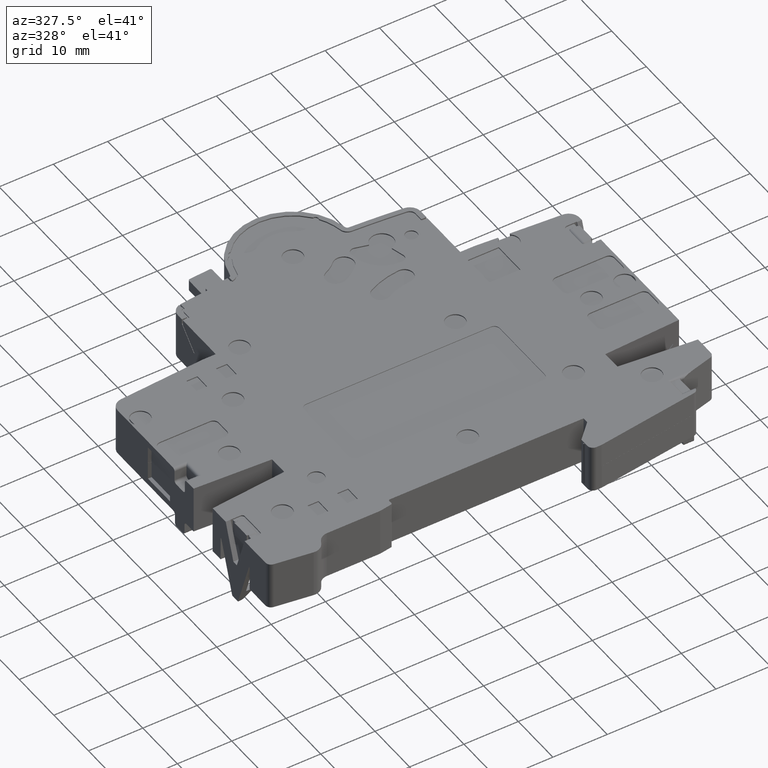
[diagram: clean part render]
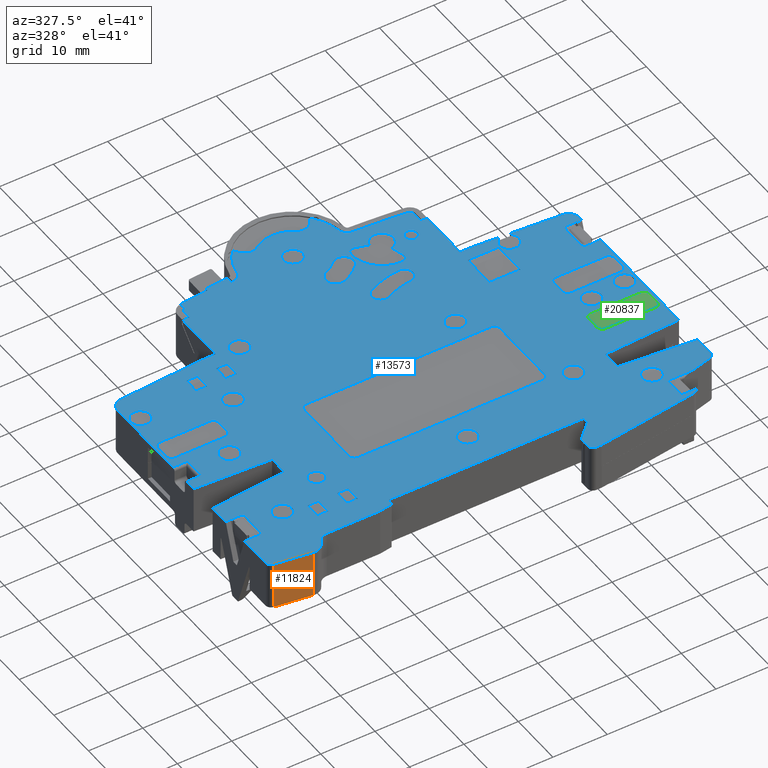
[diagram: same view with three faces highlighted in distinct colors, each labeled with its STEP entity id]
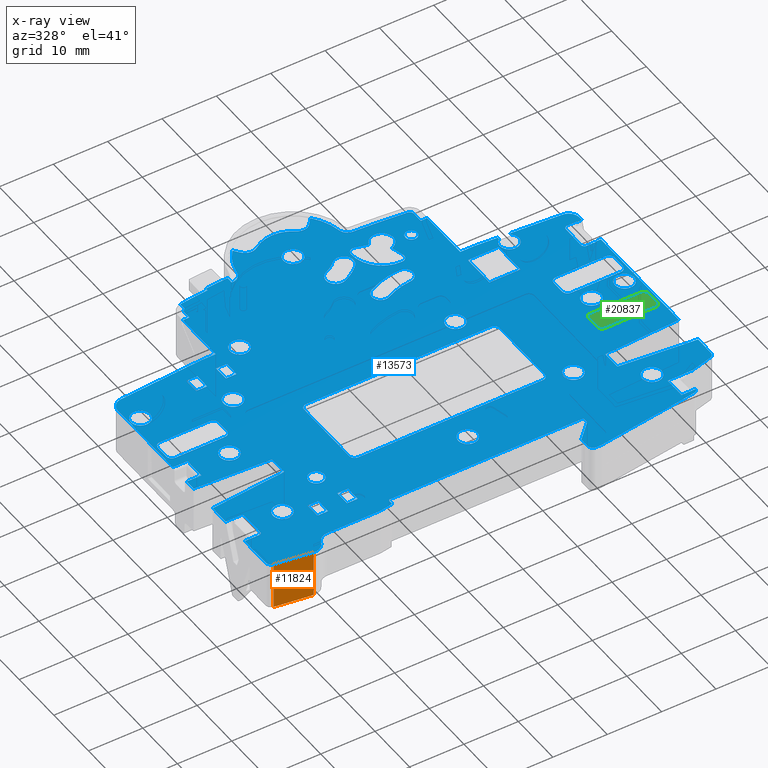
[diagram: x-ray of the same camera — body ghosted, the three highlighted faces saturated]
A machine part, auxiliary view with three faces highlighted in distinct colors.
The next image is the same camera in x-ray (body ghosted, the three faces saturated) — at least one of them is partly hidden behind the body in this view.
Their STEP definitions:

[orange] entity #11824 — the highlighted planar face has unit normal (-0.1392, -0.9903, 0).
#780=DIRECTION('',(9.902680687416E-1,-1.391731009601E-1,0.E0));
#781=VECTOR('',#780,6.840417131896E0);
#782=CARTESIAN_POINT('',(-4.163917310096E1,-3.260981330925E0,-4.4E0));
#783=LINE('',#782,#781);
#1292=DIRECTION('',(0.E0,0.E0,1.E0));
#1293=VECTOR('',#1292,8.8E0);
#1294=CARTESIAN_POINT('',(-3.486532643837E1,-4.212983395032E0,-4.4E0));
#1295=LINE('',#1294,#1293);
#1309=DIRECTION('',(0.E0,0.E0,-1.E0));
#1310=VECTOR('',#1309,8.8E0);
#1311=CARTESIAN_POINT('',(-4.163917310096E1,-3.260981330925E0,4.4E0));
#1312=LINE('',#1311,#1310);
#2272=DIRECTION('',(-9.902680687416E-1,1.391731009601E-1,0.E0));
#2273=VECTOR('',#2272,6.840417131896E0);
#2274=CARTESIAN_POINT('',(-3.486532643837E1,-4.212983395032E0,4.4E0));
#2275=LINE('',#2274,#2273);
#8027=CARTESIAN_POINT('',(-3.486532643837E1,-4.212983395032E0,-4.4E0));
#8029=VERTEX_POINT('',#8027);
#8127=CARTESIAN_POINT('',(-4.163917310096E1,-3.260981330925E0,-4.4E0));
#8129=VERTEX_POINT('',#8127);
#8924=CARTESIAN_POINT('',(-3.486532643837E1,-4.212983395032E0,4.4E0));
#8925=VERTEX_POINT('',#8924);
#9013=CARTESIAN_POINT('',(-4.163917310096E1,-3.260981330925E0,4.4E0));
#9015=VERTEX_POINT('',#9013);
#11811=CARTESIAN_POINT('',(-4.25E1,-3.14E0,-4.4E0));
#11812=DIRECTION('',(-1.391731009601E-1,-9.902680687416E-1,0.E0));
#11813=DIRECTION('',(9.902680687416E-1,-1.391731009601E-1,0.E0));
#11814=AXIS2_PLACEMENT_3D('',#11811,#11812,#11813);
#11815=PLANE('',#11814);
#11817=ORIENTED_EDGE('',*,*,#11816,.F.);
#11819=ORIENTED_EDGE('',*,*,#11818,.F.);
#11820=ORIENTED_EDGE('',*,*,#11795,.F.);
#11821=ORIENTED_EDGE('',*,*,#11035,.F.);
#11822=EDGE_LOOP('',(#11817,#11819,#11820,#11821));
#11823=FACE_OUTER_BOUND('',#11822,.F.);
#11824=ADVANCED_FACE('',(#11823),#11815,.T.);
#11035=EDGE_CURVE('',#8129,#8029,#783,.T.);
#11795=EDGE_CURVE('',#8029,#8925,#1295,.T.);
#11816=EDGE_CURVE('',#9015,#8129,#1312,.T.);
#11818=EDGE_CURVE('',#8925,#9015,#2275,.T.);

[blue] entity #13573 — the highlighted planar face has unit normal (0, 0, -1).
#407=CARTESIAN_POINT('',(-4.766150257628E0,6.292524798912E1,4.4E0));
#408=DIRECTION('',(0.E0,0.E0,-1.E0));
#409=DIRECTION('',(5.957687822035E-1,-8.031559986402E-1,0.E0));
#410=AXIS2_PLACEMENT_3D('',#407,#408,#409);
#420=CARTESIAN_POINT('',(4.766150257628E0,6.292524798912E1,4.4E0));
#421=DIRECTION('',(0.E0,0.E0,-1.E0));
#422=DIRECTION('',(7.880107536067E-1,-6.156614753257E-1,0.E0));
#423=AXIS2_PLACEMENT_3D('',#420,#421,#422);
#437=CARTESIAN_POINT('',(1.107113388775E1,5.819410579345E1,4.4E0));
#438=DIRECTION('',(0.E0,0.E0,-1.E0));
#439=DIRECTION('',(-5.521762537533E-2,-9.984743431095E-1,0.E0));
#440=AXIS2_PLACEMENT_3D('',#437,#438,#439);
#450=CARTESIAN_POINT('',(2.05E1,5.493590327820E1,4.4E0));
#451=DIRECTION('',(0.E0,0.E0,1.E0));
#452=DIRECTION('',(1.E0,0.E0,0.E0));
#453=AXIS2_PLACEMENT_3D('',#450,#451,#452);
#1186=CARTESIAN_POINT('',(3.5E1,-3.183139943752E0,4.4E0));
#1187=DIRECTION('',(0.E0,0.E0,1.E0));
#1188=DIRECTION('',(1.391731009601E-1,-9.902680687416E-1,0.E0));
#1189=AXIS2_PLACEMENT_3D('',#1186,#1187,#1188);
#1216=CARTESIAN_POINT('',(1.55E1,-5.8E0,4.4E0));
#1217=DIRECTION('',(0.E0,0.E0,1.E0));
#1218=DIRECTION('',(-1.E0,0.E0,0.E0));
#1219=AXIS2_PLACEMENT_3D('',#1216,#1217,#1218);
#1258=CARTESIAN_POINT('',(-1.816554810018E1,-3.E-1,4.4E0));
#1259=DIRECTION('',(0.E0,0.E0,-1.E0));
#1260=DIRECTION('',(-9.961946980917E-1,-8.715574274766E-2,0.E0));
#1261=AXIS2_PLACEMENT_3D('',#1258,#1259,#1260);
#1304=CARTESIAN_POINT('',(-4.15E1,-2.270713262184E0,4.4E0));
#1305=DIRECTION('',(0.E0,0.E0,1.E0));
#1306=DIRECTION('',(-1.E0,0.E0,0.E0));
#1307=AXIS2_PLACEMENT_3D('',#1304,#1305,#1306);
#1322=DIRECTION('',(0.E0,-1.E0,0.E0));
#1323=VECTOR('',#1322,3.78E0);
#1324=CARTESIAN_POINT('',(-4.25E1,1.3E1,4.4E0));
#1325=LINE('',#1324,#1323);
#1338=DIRECTION('',(0.E0,-1.E0,0.E0));
#1339=VECTOR('',#1338,6.050713262184E0);
#1340=CARTESIAN_POINT('',(-4.25E1,3.78E0,4.4E0));
#1341=LINE('',#1340,#1339);
#1398=DIRECTION('',(0.E0,-1.E0,0.E0));
#1399=VECTOR('',#1398,1.591125061871E1);
#1400=CARTESIAN_POINT('',(-4.25E1,4.041125061871E1,4.4E0));
#1401=LINE('',#1400,#1399);
#1414=DIRECTION('',(0.E0,-1.E0,0.E0));
#1415=VECTOR('',#1414,2.E0);
#1416=CARTESIAN_POINT('',(-4.25E1,2.05E1,4.4E0));
#1417=LINE('',#1416,#1415);
#1466=CARTESIAN_POINT('',(-4.05E1,4.041125061871E1,4.4E0));
#1467=DIRECTION('',(0.E0,0.E0,1.E0));
#1468=DIRECTION('',(-6.975647374412E-2,9.975640502598E-1,0.E0));
#1469=AXIS2_PLACEMENT_3D('',#1466,#1467,#1468);
#1588=DIRECTION('',(0.E0,-1.E0,0.E0));
#1589=VECTOR('',#1588,9.5E0);
#1590=CARTESIAN_POINT('',(-2.25E1,5.3E1,4.4E0));
#1591=LINE('',#1590,#1589);
#2161=DIRECTION('',(1.109207343776E-14,-1.E0,0.E0));
#2162=VECTOR('',#2161,3.202930181391E-1);
#2163=CARTESIAN_POINT('',(2.923888945497E1,4.320358797423E1,4.4E0));
#2164=LINE('',#2163,#2162);
#2165=DIRECTION('',(0.E0,1.E0,0.E0));
#2166=VECTOR('',#2165,3.138032760259E-1);
#2167=CARTESIAN_POINT('',(3.135E1,4.274216146813E1,4.4E0));
#2168=LINE('',#2167,#2166);
#2169=DIRECTION('',(9.975640502598E-1,-6.975647374413E-2,0.E0));
#2170=VECTOR('',#2169,9.312196991330E0);
#2171=CARTESIAN_POINT('',(3.135E1,4.305596474416E1,4.4E0));
#2172=LINE('',#2171,#2170);
#2173=DIRECTION('',(0.E0,-1.E0,0.E0));
#2174=VECTOR('',#2173,6.912506187132E-1);
#2175=CARTESIAN_POINT('',(4.25E1,4.041125061871E1,4.4E0));
#2176=LINE('',#2175,#2174);
#2177=DIRECTION('',(-1.E0,0.E0,0.E0));
#2178=VECTOR('',#2177,8.987683336272E-1);
#2179=CARTESIAN_POINT('',(4.25E1,3.972E1,4.4E0));
#2180=LINE('',#2179,#2178);
#2181=DIRECTION('',(0.E0,-1.E0,0.E0));
#2182=VECTOR('',#2181,4.44E0);
#2183=CARTESIAN_POINT('',(3.919876833363E1,3.922E1,4.4E0));
#2184=LINE('',#2183,#2182);
#2185=DIRECTION('',(1.E0,0.E0,0.E0));
#2186=VECTOR('',#2185,1.7E0);
#2187=CARTESIAN_POINT('',(3.98E1,3.417876833363E1,4.4E0));
#2188=LINE('',#2187,#2186);
#2189=DIRECTION('',(-1.E0,0.E0,0.E0));
#2190=VECTOR('',#2189,8.987683336272E-1);
#2191=CARTESIAN_POINT('',(4.25E1,3.428E1,4.4E0));
#2192=LINE('',#2191,#2190);
#2193=DIRECTION('',(0.E0,-1.E0,0.E0));
#2194=VECTOR('',#2193,2.258E1);
#2195=CARTESIAN_POINT('',(4.25E1,3.428E1,4.4E0));
#2196=LINE('',#2195,#2194);
#2197=DIRECTION('',(-9.987523388778E-1,-4.993761694389E-2,0.E0));
#2198=VECTOR('',#2197,1.401748907615E1);
#2199=CARTESIAN_POINT('',(4.25E1,1.17E1,4.4E0));
#2200=LINE('',#2199,#2198);
#2201=DIRECTION('',(0.E0,-1.E0,0.E0));
#2202=VECTOR('',#2201,3.5E0);
#2203=CARTESIAN_POINT('',(2.85E1,1.1E1,4.4E0));
#2204=LINE('',#2203,#2202);
#2205=DIRECTION('',(9.957164566668E-1,-9.245938526191E-2,0.E0));
#2206=VECTOR('',#2205,1.406022759417E1);
#2207=CARTESIAN_POINT('',(2.85E1,7.5E0,4.4E0));
#2208=LINE('',#2207,#2206);
#2209=DIRECTION('',(0.E0,-1.E0,0.E0));
#2210=VECTOR('',#2209,3.691003261219E0);
#2211=CARTESIAN_POINT('',(4.25E1,6.2E0,4.4E0));
#2212=LINE('',#2211,#2210);
#2213=DIRECTION('',(-9.659258262891E-1,-2.588190451025E-1,0.E0));
#2214=VECTOR('',#2213,4.030116532108E0);
#2215=CARTESIAN_POINT('',(4.175881904510E1,1.543070912492E0,4.4E0));
#2216=LINE('',#2215,#2214);
#2217=DIRECTION('',(-9.902680687416E-1,-1.391731009601E-1,0.E0));
#2218=VECTOR('',#2217,1.887284230492E1);
#2219=CARTESIAN_POINT('',(3.513917310096E1,-4.173408012494E0,4.4E0));
#2220=LINE('',#2219,#2218);
#2221=DIRECTION('',(-1.E0,0.E0,0.E0));
#2222=VECTOR('',#2221,9.5E-1);
#2223=CARTESIAN_POINT('',(1.645E1,-6.8E0,4.4E0));
#2224=LINE('',#2223,#2222);
#2225=DIRECTION('',(0.E0,1.E0,0.E0));
#2226=VECTOR('',#2225,1.75E0);
#2227=CARTESIAN_POINT('',(1.45E1,-5.8E0,4.4E0));
#2228=LINE('',#2227,#2226);
#2229=DIRECTION('',(7.071067811865E-1,7.071067811865E-1,0.E0));
#2230=VECTOR('',#2229,4.242640687119E0);
#2231=CARTESIAN_POINT('',(1.45E1,-4.05E0,4.4E0));
#2232=LINE('',#2231,#2230);
#2233=DIRECTION('',(0.E0,1.E0,0.E0));
#2234=VECTOR('',#2233,1.05E0);
#2235=CARTESIAN_POINT('',(1.75E1,-1.05E0,4.4E0));
#2236=LINE('',#2235,#2234);
#2237=DIRECTION('',(-1.E0,0.E0,0.E0));
#2238=VECTOR('',#2237,3.566554810018E1);
#2239=CARTESIAN_POINT('',(1.75E1,0.E0,4.4E0));
#2240=LINE('',#2239,#2238);
#2241=DIRECTION('',(8.715574274766E-2,-9.961946980917E-1,0.E0));
#2242=VECTOR('',#2241,4.964092745543E-1);
#2243=CARTESIAN_POINT('',(-1.846440650960E1,-3.261467228243E-1,4.4E0));
#2244=LINE('',#2243,#2242);
#2245=CARTESIAN_POINT('',(-1.872E1,-8.468137330431E-1,4.4E0));
#2246=DIRECTION('',(0.E0,0.E0,-1.E0));
#2247=DIRECTION('',(9.961946980917E-1,8.715574274766E-2,0.E0));
#2248=AXIS2_PLACEMENT_3D('',#2245,#2246,#2247);
#2250=DIRECTION('',(-9.874138067509E-1,-1.581580672545E-1,0.E0));
#2251=VECTOR('',#2250,2.256995998549E0);
#2252=CARTESIAN_POINT('',(-1.867255257982E1,-1.143037875068E0,4.4E0));
#2253=LINE('',#2252,#2251);
#2254=DIRECTION('',(-1.E0,0.E0,0.E0));
#2255=VECTOR('',#2254,9.798858409428E0);
#2256=CARTESIAN_POINT('',(-2.090114159057E1,-1.5E0,4.4E0));
#2257=LINE('',#2256,#2255);
#2258=CARTESIAN_POINT('',(-3.07E1,-3.5E0,4.4E0));
#2259=DIRECTION('',(0.E0,0.E0,1.E0));
#2260=DIRECTION('',(0.E0,1.E0,0.E0));
#2261=AXIS2_PLACEMENT_3D('',#2258,#2259,#2260);
#2263=DIRECTION('',(-5.E-1,-8.660254037844E-1,0.E0));
#2264=VECTOR('',#2263,8.457572426257E-1);
#2265=CARTESIAN_POINT('',(-3.243205080757E1,-2.5E0,4.4E0));
#2266=LINE('',#2265,#2264);
#2267=CARTESIAN_POINT('',(-3.458698023645E1,-2.232447257549E0,4.4E0));
#2268=DIRECTION('',(0.E0,0.E0,-1.E0));
#2269=DIRECTION('',(8.660254037844E-1,-5.E-1,0.E0));
#2270=AXIS2_PLACEMENT_3D('',#2267,#2268,#2269);
#2272=DIRECTION('',(-9.902680687416E-1,1.391731009601E-1,0.E0));
#2273=VECTOR('',#2272,6.840417131896E0);
#2274=CARTESIAN_POINT('',(-3.486532643837E1,-4.212983395032E0,4.4E0));
#2275=LINE('',#2274,#2273);
#2276=DIRECTION('',(1.E0,0.E0,0.E0));
#2277=VECTOR('',#2276,8.987683336272E-1);
#2278=CARTESIAN_POINT('',(-4.25E1,3.78E0,4.4E0));
#2279=LINE('',#2278,#2277);
#2280=DIRECTION('',(0.E0,1.E0,0.E0));
#2281=VECTOR('',#2280,4.44E0);
#2282=CARTESIAN_POINT('',(-3.929127313221E1,4.28E0,4.4E0));
#2283=LINE('',#2282,#2281);
#2284=DIRECTION('',(1.E0,0.E0,0.E0));
#2285=VECTOR('',#2284,8.987683336272E-1);
#2286=CARTESIAN_POINT('',(-4.25E1,9.22E0,4.4E0));
#2287=LINE('',#2286,#2285);
#2288=DIRECTION('',(9.957246981846E-1,9.237058744656E-2,0.E0));
#2289=VECTOR('',#2288,1.406011121902E1);
#2290=CARTESIAN_POINT('',(-4.25E1,1.3E1,4.4E0));
#2291=LINE('',#2290,#2289);
#2292=DIRECTION('',(0.E0,1.E0,0.E0));
#2293=VECTOR('',#2292,3.5E0);
#2294=CARTESIAN_POINT('',(-2.85E1,1.429874073286E1,4.4E0));
#2295=LINE('',#2294,#2293);
#2296=DIRECTION('',(-9.987478543079E-1,5.002722774034E-2,0.E0));
#2297=VECTOR('',#2296,1.401755201737E1);
#2298=CARTESIAN_POINT('',(-2.85E1,1.779874073286E1,4.4E0));
#2299=LINE('',#2298,#2297);
#2300=DIRECTION('',(9.975640502598E-1,6.975647374413E-2,0.E0));
#2301=VECTOR('',#2300,1.567770304415E1);
#2302=CARTESIAN_POINT('',(-4.063951294749E1,4.240637871923E1,4.4E0));
#2303=LINE('',#2302,#2301);
#2304=DIRECTION('',(1.E0,0.E0,0.E0));
#2305=VECTOR('',#2304,2.5E0);
#2306=CARTESIAN_POINT('',(-2.5E1,4.35E1,4.4E0));
#2307=LINE('',#2306,#2305);
#2308=DIRECTION('',(1.E0,0.E0,0.E0));
#2309=VECTOR('',#2308,1.2E0);
#2310=CARTESIAN_POINT('',(-2.25E1,5.3E1,4.4E0));
#2311=LINE('',#2310,#2309);
#2312=DIRECTION('',(0.E0,1.E0,0.E0));
#2313=VECTOR('',#2312,1.43E0);
#2314=CARTESIAN_POINT('',(-2.13E1,5.3E1,4.4E0));
#2315=LINE('',#2314,#2313);
#2316=CARTESIAN_POINT('',(-2.05E1,5.443E1,4.4E0));
#2317=DIRECTION('',(0.E0,0.E0,1.E0));
#2318=DIRECTION('',(-3.75E-1,9.270248108870E-1,0.E0));
#2319=AXIS2_PLACEMENT_3D('',#2316,#2317,#2318);
#2321=DIRECTION('',(0.E0,1.E0,0.E0));
#2322=VECTOR('',#2321,1.243839580667E0);
#2323=CARTESIAN_POINT('',(-2.08E1,5.517161984871E1,4.4E0));
#2324=LINE('',#2323,#2322);
#2325=CARTESIAN_POINT('',(0.E0,-1.425E2,4.4E0));
#2326=DIRECTION('',(0.E0,0.E0,-1.E0));
#2327=DIRECTION('',(-1.04E-1,9.945772971469E-1,0.E0));
#2328=AXIS2_PLACEMENT_3D('',#2325,#2326,#2327);
#2330=DIRECTION('',(0.E0,1.E0,0.E0));
#2331=VECTOR('',#2330,5.E-1);
#2332=CARTESIAN_POINT('',(-1.55E1,5.689847040537E1,4.4E0));
#2333=LINE('',#2332,#2331);
#2334=CARTESIAN_POINT('',(0.E0,-1.42E2,4.4E0));
#2335=DIRECTION('',(0.E0,0.E0,-1.E0));
#2336=DIRECTION('',(-7.75E-2,9.969923520268E-1,0.E0));
#2337=AXIS2_PLACEMENT_3D('',#2334,#2335,#2336);
#2339=DIRECTION('',(0.E0,-1.E0,0.E0));
#2340=VECTOR('',#2339,1.201931565216E0);
#2341=CARTESIAN_POINT('',(-1.13E1,5.768051983105E1,4.4E0));
#2342=LINE('',#2341,#2340);
#2343=CARTESIAN_POINT('',(0.E0,-1.42E2,4.4E0));
#2344=DIRECTION('',(0.E0,0.E0,-1.E0));
#2345=DIRECTION('',(-5.684104627767E-2,9.983832407738E-1,0.E0));
#2346=AXIS2_PLACEMENT_3D('',#2343,#2344,#2345);
#2348=CARTESIAN_POINT('',(0.E0,5.65E1,4.4E0));
#2349=DIRECTION('',(0.E0,0.E0,-1.E0));
#2350=DIRECTION('',(-9.884940971210E-1,1.512594458438E-1,0.E0));
#2351=AXIS2_PLACEMENT_3D('',#2348,#2349,#2350);
#2353=DIRECTION('',(6.156614753257E-1,-7.880107536067E-1,0.E0));
#2354=VECTOR('',#2353,1.330415484700E0);
#2355=CARTESIAN_POINT('',(-7.161257324948E0,6.274230674718E1,4.4E0));
#2356=LINE('',#2355,#2354);
#2357=CARTESIAN_POINT('',(0.E0,5.65E1,4.4E0));
#2358=DIRECTION('',(0.E0,0.E0,1.E0));
#2359=DIRECTION('',(5.957687822035E-1,8.031559986402E-1,0.E0));
#2360=AXIS2_PLACEMENT_3D('',#2357,#2358,#2359);
#2362=DIRECTION('',(6.156614753257E-1,7.880107536067E-1,0.E0));
#2363=VECTOR('',#2362,1.330415484700E0);
#2364=CARTESIAN_POINT('',(6.342171764841E0,6.169392503847E1,4.4E0));
#2365=LINE('',#2364,#2363);
#2366=CARTESIAN_POINT('',(0.E0,5.65E1,4.4E0));
#2367=DIRECTION('',(0.E0,0.E0,-1.E0));
#2368=DIRECTION('',(7.538165605208E-1,6.570849207557E-1,0.E0));
#2369=AXIS2_PLACEMENT_3D('',#2366,#2367,#2368);
#2371=CARTESIAN_POINT('',(0.E0,-1.42E2,4.4E0));
#2372=DIRECTION('',(0.E0,0.E0,-1.E0));
#2373=DIRECTION('',(5.521762537534E-2,9.984743431095E-1,0.E0));
#2374=AXIS2_PLACEMENT_3D('',#2371,#2372,#2373);
#2376=DIRECTION('',(0.E0,-1.E0,0.E0));
#2377=VECTOR('',#2376,1.935903278199E0);
#2378=CARTESIAN_POINT('',(2.13E1,5.493590327820E1,4.4E0));
#2379=LINE('',#2378,#2377);
#2380=DIRECTION('',(1.E0,0.E0,0.E0));
#2381=VECTOR('',#2380,1.2E0);
#2382=CARTESIAN_POINT('',(2.13E1,5.3E1,4.4E0));
#2383=LINE('',#2382,#2381);
#2384=DIRECTION('',(0.E0,-1.E0,0.E0));
#2385=VECTOR('',#2384,9.5E0);
#2386=CARTESIAN_POINT('',(2.25E1,5.3E1,4.4E0));
#2387=LINE('',#2386,#2385);
#2388=DIRECTION('',(1.E0,0.E0,0.E0));
#2389=VECTOR('',#2388,2.5E0);
#2390=CARTESIAN_POINT('',(2.25E1,4.35E1,4.4E0));
#2391=LINE('',#2390,#2389);
#2392=DIRECTION('',(9.975640502598E-1,-6.975647374413E-2,0.E0));
#2393=VECTOR('',#2392,4.249240390997E0);
#2394=CARTESIAN_POINT('',(2.5E1,4.35E1,4.4E0));
#2395=LINE('',#2394,#2393);
#2396=DIRECTION('',(0.E0,-1.E0,0.E0));
#2397=VECTOR('',#2396,6.276796436559E0);
#2398=CARTESIAN_POINT('',(2.246160178172E1,4.123839821828E1,4.4E0));
#2399=LINE('',#2398,#2397);
#2400=DIRECTION('',(1.E0,0.E0,0.E0));
#2401=VECTOR('',#2400,5.676796436559E0);
#2402=CARTESIAN_POINT('',(2.246160178172E1,3.496160178172E1,4.4E0));
#2403=LINE('',#2402,#2401);
#2404=DIRECTION('',(0.E0,1.E0,0.E0));
#2405=VECTOR('',#2404,6.276796436559E0);
#2406=CARTESIAN_POINT('',(2.813839821828E1,3.496160178172E1,4.4E0));
#2407=LINE('',#2406,#2405);
#2408=DIRECTION('',(-1.E0,0.E0,0.E0));
#2409=VECTOR('',#2408,5.676796436559E0);
#2410=CARTESIAN_POINT('',(2.813839821828E1,4.123839821828E1,4.4E0));
#2411=LINE('',#2410,#2409);
#2412=DIRECTION('',(1.E0,0.E0,0.E0));
#2413=VECTOR('',#2412,1.984474969635E0);
#2414=CARTESIAN_POINT('',(-2.971745506493E1,5.617455064928E0,4.4E0));
#2415=LINE('',#2414,#2413);
#2416=DIRECTION('',(0.E0,1.E0,0.E0));
#2417=VECTOR('',#2416,2.834910129856E0);
#2418=CARTESIAN_POINT('',(-2.971745506493E1,2.782544935072E0,4.4E0));
#2419=LINE('',#2418,#2417);
#2420=DIRECTION('',(1.E0,0.E0,0.E0));
#2421=VECTOR('',#2420,1.984474969635E0);
#2422=CARTESIAN_POINT('',(-2.971745506493E1,2.782544935072E0,4.4E0));
#2423=LINE('',#2422,#2421);
#2424=DIRECTION('',(0.E0,1.E0,0.E0));
#2425=VECTOR('',#2424,2.834910129856E0);
#2426=CARTESIAN_POINT('',(-2.773298009529E1,2.782544935072E0,4.4E0));
#2427=LINE('',#2426,#2425);
#2428=DIRECTION('',(1.E0,0.E0,0.E0));
#2429=VECTOR('',#2428,1.984474969635E0);
#2430=CARTESIAN_POINT('',(-2.426701990471E1,5.617455064928E0,4.4E0));
#2431=LINE('',#2430,#2429);
#2432=DIRECTION('',(0.E0,1.E0,0.E0));
#2433=VECTOR('',#2432,2.834910129856E0);
#2434=CARTESIAN_POINT('',(-2.426701990471E1,2.782544935072E0,4.4E0));
#2435=LINE('',#2434,#2433);
#2436=DIRECTION('',(1.E0,0.E0,0.E0));
#2437=VECTOR('',#2436,1.984474969635E0);
#2438=CARTESIAN_POINT('',(-2.426701990471E1,2.782544935072E0,4.4E0));
#2439=LINE('',#2438,#2437);
#2440=DIRECTION('',(0.E0,1.E0,0.E0));
#2441=VECTOR('',#2440,2.834910129856E0);
#2442=CARTESIAN_POINT('',(-2.228254493507E1,2.782544935072E0,4.4E0));
#2443=LINE('',#2442,#2441);
#2444=DIRECTION('',(1.E0,0.E0,0.E0));
#2445=VECTOR('',#2444,1.984474969635E0);
#2446=CARTESIAN_POINT('',(-2.971745506493E1,4.061745506493E1,4.4E0));
#2447=LINE('',#2446,#2445);
#2448=DIRECTION('',(0.E0,1.E0,0.E0));
#2449=VECTOR('',#2448,2.834910129856E0);
#2450=CARTESIAN_POINT('',(-2.971745506493E1,3.778254493507E1,4.4E0));
#2451=LINE('',#2450,#2449);
#2452=DIRECTION('',(1.E0,0.E0,0.E0));
#2453=VECTOR('',#2452,1.984474969635E0);
#2454=CARTESIAN_POINT('',(-2.971745506493E1,3.778254493507E1,4.4E0));
#2455=LINE('',#2454,#2453);
#2456=DIRECTION('',(0.E0,1.E0,0.E0));
#2457=VECTOR('',#2456,2.834910129856E0);
#2458=CARTESIAN_POINT('',(-2.773298009529E1,3.778254493507E1,4.4E0));
#2459=LINE('',#2458,#2457);
#2460=DIRECTION('',(1.E0,0.E0,0.E0));
#2461=VECTOR('',#2460,1.984474969635E0);
#2462=CARTESIAN_POINT('',(-2.426701990471E1,4.061745506493E1,4.4E0));
#2463=LINE('',#2462,#2461);
#2464=DIRECTION('',(0.E0,1.E0,0.E0));
#2465=VECTOR('',#2464,2.834910129856E0);
#2466=CARTESIAN_POINT('',(-2.426701990471E1,3.778254493507E1,4.4E0));
#2467=LINE('',#2466,#2465);
#2468=DIRECTION('',(1.E0,0.E0,0.E0));
#2469=VECTOR('',#2468,1.984474969635E0);
#2470=CARTESIAN_POINT('',(-2.426701990471E1,3.778254493507E1,4.4E0));
#2471=LINE('',#2470,#2469);
#2472=DIRECTION('',(0.E0,1.E0,0.E0));
#2473=VECTOR('',#2472,2.834910129856E0);
#2474=CARTESIAN_POINT('',(-2.228254493507E1,3.778254493507E1,4.4E0));
#2475=LINE('',#2474,#2473);
#2476=CARTESIAN_POINT('',(0.E0,6.E0,4.4E0));
#2477=DIRECTION('',(0.E0,0.E0,1.E0));
#2478=DIRECTION('',(-1.E0,0.E0,0.E0));
#2479=AXIS2_PLACEMENT_3D('',#2476,#2477,#2478);
#2481=CARTESIAN_POINT('',(0.E0,6.E0,4.4E0));
#2482=DIRECTION('',(0.E0,0.E0,1.E0));
#2483=DIRECTION('',(1.E0,0.E0,0.E0));
#2484=AXIS2_PLACEMENT_3D('',#2481,#2482,#2483);
#2486=CARTESIAN_POINT('',(-3.38E1,6.5E0,4.4E0));
#2487=DIRECTION('',(0.E0,0.E0,1.E0));
#2488=DIRECTION('',(-1.E0,0.E0,0.E0));
#2489=AXIS2_PLACEMENT_3D('',#2486,#2487,#2488);
#2491=CARTESIAN_POINT('',(-3.38E1,6.5E0,4.4E0));
#2492=DIRECTION('',(0.E0,0.E0,1.E0));
#2493=DIRECTION('',(1.E0,0.E0,0.E0));
#2494=AXIS2_PLACEMENT_3D('',#2491,#2492,#2493);
#2496=CARTESIAN_POINT('',(-2.6E1,3.3E1,4.4E0));
#2497=DIRECTION('',(0.E0,0.E0,1.E0));
#2498=DIRECTION('',(-1.E0,0.E0,0.E0));
#2499=AXIS2_PLACEMENT_3D('',#2496,#2497,#2498);
#2501=CARTESIAN_POINT('',(-2.6E1,3.3E1,4.4E0));
#2502=DIRECTION('',(0.E0,0.E0,1.E0));
#2503=DIRECTION('',(1.E0,0.E0,0.E0));
#2504=AXIS2_PLACEMENT_3D('',#2501,#2502,#2503);
#2506=CARTESIAN_POINT('',(-1.85E1,4.29E1,4.4E0));
#2507=DIRECTION('',(0.E0,0.E0,1.E0));
#2508=DIRECTION('',(-1.E0,0.E0,0.E0));
#2509=AXIS2_PLACEMENT_3D('',#2506,#2507,#2508);
#2511=CARTESIAN_POINT('',(-1.85E1,4.29E1,4.4E0));
#2512=DIRECTION('',(0.E0,0.E0,1.E0));
#2513=DIRECTION('',(1.E0,0.E0,0.E0));
#2514=AXIS2_PLACEMENT_3D('',#2511,#2512,#2513);
#2516=CARTESIAN_POINT('',(0.E0,5.65E1,4.4E0));
#2517=DIRECTION('',(0.E0,0.E0,1.E0));
#2518=DIRECTION('',(-1.E0,0.E0,0.E0));
#2519=AXIS2_PLACEMENT_3D('',#2516,#2517,#2518);
#2521=CARTESIAN_POINT('',(0.E0,5.65E1,4.4E0));
#2522=DIRECTION('',(0.E0,0.E0,1.E0));
#2523=DIRECTION('',(1.E0,0.E0,0.E0));
#2524=AXIS2_PLACEMENT_3D('',#2521,#2522,#2523);
#2526=CARTESIAN_POINT('',(1.3E1,3.E1,4.4E0));
#2527=DIRECTION('',(0.E0,0.E0,1.E0));
#2528=DIRECTION('',(-1.E0,0.E0,0.E0));
#2529=AXIS2_PLACEMENT_3D('',#2526,#2527,#2528);
#2531=CARTESIAN_POINT('',(1.3E1,3.E1,4.4E0));
#2532=DIRECTION('',(0.E0,0.E0,1.E0));
#2533=DIRECTION('',(1.E0,0.E0,0.E0));
#2534=AXIS2_PLACEMENT_3D('',#2531,#2532,#2533);
#2536=CARTESIAN_POINT('',(2.2E1,1.E1,4.4E0));
#2537=DIRECTION('',(0.E0,0.E0,1.E0));
#2538=DIRECTION('',(-1.E0,0.E0,0.E0));
#2539=AXIS2_PLACEMENT_3D('',#2536,#2537,#2538);
#2541=CARTESIAN_POINT('',(2.2E1,1.E1,4.4E0));
#2542=DIRECTION('',(0.E0,0.E0,1.E0));
#2543=DIRECTION('',(1.E0,0.E0,0.E0));
#2544=AXIS2_PLACEMENT_3D('',#2541,#2542,#2543);
#2546=CARTESIAN_POINT('',(3.2E1,3.E0,4.4E0));
#2547=DIRECTION('',(0.E0,0.E0,1.E0));
#2548=DIRECTION('',(-1.E0,0.E0,0.E0));
#2549=AXIS2_PLACEMENT_3D('',#2546,#2547,#2548);
#2551=CARTESIAN_POINT('',(3.2E1,3.E0,4.4E0));
#2552=DIRECTION('',(0.E0,0.E0,1.E0));
#2553=DIRECTION('',(1.E0,0.E0,0.E0));
#2554=AXIS2_PLACEMENT_3D('',#2551,#2552,#2553);
#2556=CARTESIAN_POINT('',(-3.33E1,2.26E1,4.4E0));
#2557=DIRECTION('',(0.E0,0.E0,1.E0));
#2558=DIRECTION('',(-1.E0,0.E0,0.E0));
#2559=AXIS2_PLACEMENT_3D('',#2556,#2557,#2558);
#2561=CARTESIAN_POINT('',(-3.33E1,2.26E1,4.4E0));
#2562=DIRECTION('',(0.E0,0.E0,1.E0));
#2563=DIRECTION('',(1.E0,0.E0,0.E0));
#2564=AXIS2_PLACEMENT_3D('',#2561,#2562,#2563);
#2566=CARTESIAN_POINT('',(-4.05E1,3.7E1,4.4E0));
#2567=DIRECTION('',(0.E0,0.E0,1.E0));
#2568=DIRECTION('',(-1.E0,0.E0,0.E0));
#2569=AXIS2_PLACEMENT_3D('',#2566,#2567,#2568);
#2571=CARTESIAN_POINT('',(-4.05E1,3.7E1,4.4E0));
#2572=DIRECTION('',(0.E0,0.E0,1.E0));
#2573=DIRECTION('',(1.E0,0.E0,0.E0));
#2574=AXIS2_PLACEMENT_3D('',#2571,#2572,#2573);
#2576=CARTESIAN_POINT('',(4.03E1,2.395E1,4.4E0));
#2577=DIRECTION('',(0.E0,0.E0,1.E0));
#2578=DIRECTION('',(-1.E0,0.E0,0.E0));
#2579=AXIS2_PLACEMENT_3D('',#2576,#2577,#2578);
#2581=CARTESIAN_POINT('',(4.03E1,2.395E1,4.4E0));
#2582=DIRECTION('',(0.E0,0.E0,1.E0));
#2583=DIRECTION('',(1.E0,0.E0,0.E0));
#2584=AXIS2_PLACEMENT_3D('',#2581,#2582,#2583);
#2586=CARTESIAN_POINT('',(3.38E1,2.33E1,4.4E0));
#2587=DIRECTION('',(0.E0,0.E0,1.E0));
#2588=DIRECTION('',(-1.E0,0.E0,0.E0));
#2589=AXIS2_PLACEMENT_3D('',#2586,#2587,#2588);
#2591=CARTESIAN_POINT('',(3.38E1,2.33E1,4.4E0));
#2592=DIRECTION('',(0.E0,0.E0,1.E0));
#2593=DIRECTION('',(1.E0,0.E0,0.E0));
#2594=AXIS2_PLACEMENT_3D('',#2591,#2592,#2593);
#2596=CARTESIAN_POINT('',(-2.5E1,1.05E1,4.4E0));
#2597=DIRECTION('',(0.E0,0.E0,1.E0));
#2598=DIRECTION('',(1.E0,0.E0,0.E0));
#2599=AXIS2_PLACEMENT_3D('',#2596,#2597,#2598);
#2601=CARTESIAN_POINT('',(-2.5E1,1.05E1,4.4E0));
#2602=DIRECTION('',(0.E0,0.E0,1.E0));
#2603=DIRECTION('',(-1.E0,0.E0,0.E0));
#2604=AXIS2_PLACEMENT_3D('',#2601,#2602,#2603);
#2606=CARTESIAN_POINT('',(1.825E1,5.095E1,4.4E0));
#2607=DIRECTION('',(0.E0,0.E0,1.E0));
#2608=DIRECTION('',(1.E0,0.E0,0.E0));
#2609=AXIS2_PLACEMENT_3D('',#2606,#2607,#2608);
#2611=CARTESIAN_POINT('',(1.825E1,5.095E1,4.4E0));
#2612=DIRECTION('',(0.E0,0.E0,1.E0));
#2613=DIRECTION('',(-1.E0,0.E0,0.E0));
#2614=AXIS2_PLACEMENT_3D('',#2611,#2612,#2613);
#2616=CARTESIAN_POINT('',(1.3E1,3.E1,4.4E0));
#2617=DIRECTION('',(0.E0,0.E0,-1.E0));
#2618=DIRECTION('',(-4.632960351199E-1,8.862035792312E-1,0.E0));
#2619=AXIS2_PLACEMENT_3D('',#2616,#2617,#2618);
#2621=CARTESIAN_POINT('',(6.791833129394E0,4.187512796170E1,4.4E0));
#2622=DIRECTION('',(0.E0,0.E0,-1.E0));
#2623=DIRECTION('',(4.632960351199E-1,-8.862035792312E-1,0.E0));
#2624=AXIS2_PLACEMENT_3D('',#2621,#2622,#2623);
#2626=CARTESIAN_POINT('',(1.3E1,3.E1,4.4E0));
#2627=DIRECTION('',(0.E0,0.E0,-1.E0));
#2628=DIRECTION('',(-4.632960351199E-1,8.862035792312E-1,0.E0));
#2629=AXIS2_PLACEMENT_3D('',#2626,#2627,#2628);
#2631=CARTESIAN_POINT('',(1.215860703831E1,4.337355816094E1,4.4E0));
#2632=DIRECTION('',(0.E0,0.E0,-1.E0));
#2633=DIRECTION('',(-6.279051952931E-2,9.980267284283E-1,0.E0));
#2634=AXIS2_PLACEMENT_3D('',#2631,#2632,#2633);
#2636=CARTESIAN_POINT('',(5.727564927611E0,5.077243507239E1,4.4E0));
#2637=DIRECTION('',(0.E0,0.E0,-1.E0));
#2638=DIRECTION('',(-7.071067811865E-1,7.071067811866E-1,0.E0));
#2639=AXIS2_PLACEMENT_3D('',#2636,#2637,#2638);
#2641=CARTESIAN_POINT('',(0.E0,5.65E1,4.4E0));
#2642=DIRECTION('',(0.E0,0.E0,-1.E0));
#2643=DIRECTION('',(7.071067811866E-1,-7.071067811865E-1,0.E0));
#2644=AXIS2_PLACEMENT_3D('',#2641,#2642,#2643);
#2646=CARTESIAN_POINT('',(3.073594892185E0,4.900580128108E1,4.4E0));
#2647=DIRECTION('',(0.E0,0.E0,-1.E0));
#2648=DIRECTION('',(3.794561595290E-1,-9.252097183858E-1,0.E0));
#2649=AXIS2_PLACEMENT_3D('',#2646,#2647,#2648);
#2651=CARTESIAN_POINT('',(0.E0,5.65E1,4.4E0));
#2652=DIRECTION('',(0.E0,0.E0,-1.E0));
#2653=DIRECTION('',(7.071067811865E-1,-7.071067811865E-1,0.E0));
#2654=AXIS2_PLACEMENT_3D('',#2651,#2652,#2653);
#2656=CARTESIAN_POINT('',(-4.1E1,2.96E1,4.4E0));
#2657=DIRECTION('',(0.E0,0.E0,1.E0));
#2658=DIRECTION('',(0.E0,1.E0,0.E0));
#2659=AXIS2_PLACEMENT_3D('',#2656,#2657,#2658);
#2661=DIRECTION('',(0.E0,-1.E0,0.E0));
#2662=VECTOR('',#2661,2.4E0);
#2663=CARTESIAN_POINT('',(-4.2E1,2.96E1,4.4E0));
#2664=LINE('',#2663,#2662);
#2665=CARTESIAN_POINT('',(-4.1E1,2.72E1,4.4E0));
#2666=DIRECTION('',(0.E0,0.E0,1.E0));
#2667=DIRECTION('',(-1.E0,0.E0,0.E0));
#2668=AXIS2_PLACEMENT_3D('',#2665,#2666,#2667);
#2670=DIRECTION('',(1.E0,0.E0,0.E0));
#2671=VECTOR('',#2670,9.2E0);
#2672=CARTESIAN_POINT('',(-4.1E1,2.62E1,4.4E0));
#2673=LINE('',#2672,#2671);
#2674=CARTESIAN_POINT('',(-3.18E1,2.72E1,4.4E0));
#2675=DIRECTION('',(0.E0,0.E0,1.E0));
#2676=DIRECTION('',(0.E0,-1.E0,0.E0));
#2677=AXIS2_PLACEMENT_3D('',#2674,#2675,#2676);
#2679=DIRECTION('',(0.E0,1.E0,0.E0));
#2680=VECTOR('',#2679,2.4E0);
#2681=CARTESIAN_POINT('',(-3.08E1,2.72E1,4.4E0));
#2682=LINE('',#2681,#2680);
#2683=CARTESIAN_POINT('',(-3.18E1,2.96E1,4.4E0));
#2684=DIRECTION('',(0.E0,0.E0,1.E0));
#2685=DIRECTION('',(1.E0,0.E0,0.E0));
#2686=AXIS2_PLACEMENT_3D('',#2683,#2684,#2685);
#2688=DIRECTION('',(-1.E0,0.E0,0.E0));
#2689=VECTOR('',#2688,9.2E0);
#2690=CARTESIAN_POINT('',(-3.18E1,3.06E1,4.4E0));
#2691=LINE('',#2690,#2689);
#2692=CARTESIAN_POINT('',(4.1E1,2.95E1,4.4E0));
#2693=DIRECTION('',(0.E0,0.E0,1.E0));
#2694=DIRECTION('',(1.E0,0.E0,0.E0));
#2695=AXIS2_PLACEMENT_3D('',#2692,#2693,#2694);
#2697=DIRECTION('',(-1.E0,0.E0,0.E0));
#2698=VECTOR('',#2697,9.2E0);
#2699=CARTESIAN_POINT('',(4.1E1,3.05E1,4.4E0));
#2700=LINE('',#2699,#2698);
#2701=CARTESIAN_POINT('',(3.18E1,2.95E1,4.4E0));
#2702=DIRECTION('',(0.E0,0.E0,1.E0));
#2703=DIRECTION('',(0.E0,1.E0,0.E0));
#2704=AXIS2_PLACEMENT_3D('',#2701,#2702,#2703);
#2706=DIRECTION('',(0.E0,-1.E0,0.E0));
#2707=VECTOR('',#2706,2.4E0);
#2708=CARTESIAN_POINT('',(3.08E1,2.95E1,4.4E0));
#2709=LINE('',#2708,#2707);
#2710=CARTESIAN_POINT('',(3.18E1,2.71E1,4.4E0));
#2711=DIRECTION('',(0.E0,0.E0,1.E0));
#2712=DIRECTION('',(-1.E0,0.E0,0.E0));
#2713=AXIS2_PLACEMENT_3D('',#2710,#2711,#2712);
#2715=DIRECTION('',(1.E0,0.E0,0.E0));
#2716=VECTOR('',#2715,9.2E0);
#2717=CARTESIAN_POINT('',(3.18E1,2.61E1,4.4E0));
#2718=LINE('',#2717,#2716);
#2719=CARTESIAN_POINT('',(4.1E1,2.71E1,4.4E0));
#2720=DIRECTION('',(0.E0,0.E0,1.E0));
#2721=DIRECTION('',(0.E0,-1.E0,0.E0));
#2722=AXIS2_PLACEMENT_3D('',#2719,#2720,#2721);
#2724=DIRECTION('',(0.E0,1.E0,0.E0));
#2725=VECTOR('',#2724,2.4E0);
#2726=CARTESIAN_POINT('',(4.2E1,2.71E1,4.4E0));
#2727=LINE('',#2726,#2725);
#2728=CARTESIAN_POINT('',(4.1E1,1.95E1,4.4E0));
#2729=DIRECTION('',(0.E0,0.E0,1.E0));
#2730=DIRECTION('',(1.E0,0.E0,0.E0));
#2731=AXIS2_PLACEMENT_3D('',#2728,#2729,#2730);
#2733=DIRECTION('',(-1.E0,0.E0,0.E0));
#2734=VECTOR('',#2733,9.2E0);
#2735=CARTESIAN_POINT('',(4.1E1,2.05E1,4.4E0));
#2736=LINE('',#2735,#2734);
#2737=CARTESIAN_POINT('',(3.18E1,1.95E1,4.4E0));
#2738=DIRECTION('',(0.E0,0.E0,1.E0));
#2739=DIRECTION('',(0.E0,1.E0,0.E0));
#2740=AXIS2_PLACEMENT_3D('',#2737,#2738,#2739);
#2742=DIRECTION('',(0.E0,-1.E0,0.E0));
#2743=VECTOR('',#2742,2.4E0);
#2744=CARTESIAN_POINT('',(3.08E1,1.95E1,4.4E0));
#2745=LINE('',#2744,#2743);
#2746=CARTESIAN_POINT('',(3.18E1,1.71E1,4.4E0));
#2747=DIRECTION('',(0.E0,0.E0,1.E0));
#2748=DIRECTION('',(-1.E0,0.E0,0.E0));
#2749=AXIS2_PLACEMENT_3D('',#2746,#2747,#2748);
#2751=DIRECTION('',(1.E0,0.E0,0.E0));
#2752=VECTOR('',#2751,9.2E0);
#2753=CARTESIAN_POINT('',(3.18E1,1.61E1,4.4E0));
#2754=LINE('',#2753,#2752);
#2755=CARTESIAN_POINT('',(4.1E1,1.71E1,4.4E0));
#2756=DIRECTION('',(0.E0,0.E0,1.E0));
#2757=DIRECTION('',(0.E0,-1.E0,0.E0));
#2758=AXIS2_PLACEMENT_3D('',#2755,#2756,#2757);
#2760=DIRECTION('',(0.E0,1.E0,0.E0));
#2761=VECTOR('',#2760,2.4E0);
#2762=CARTESIAN_POINT('',(4.2E1,1.71E1,4.4E0));
#2763=LINE('',#2762,#2761);
#2764=DIRECTION('',(-9.659258262891E-1,2.588190451025E-1,0.E0));
#2765=VECTOR('',#2764,2.389988864129E0);
#2766=CARTESIAN_POINT('',(1.147155576479E1,5.254351999472E1,4.4E0));
#2767=LINE('',#2766,#2765);
#2768=CARTESIAN_POINT('',(8.904184751285E0,5.219616880405E1,4.4E0));
#2769=DIRECTION('',(0.E0,0.E0,1.E0));
#2770=DIRECTION('',(2.588190451025E-1,9.659258262891E-1,0.E0));
#2771=AXIS2_PLACEMENT_3D('',#2768,#2769,#2770);
#2773=CARTESIAN_POINT('',(1.35E1,5.2E1,4.4E0));
#2774=DIRECTION('',(0.E0,0.E0,1.E0));
#2775=DIRECTION('',(-9.990902714597E-1,4.264539218384E-2,0.E0));
#2776=AXIS2_PLACEMENT_3D('',#2773,#2774,#2775);
#2778=CARTESIAN_POINT('',(1.369616880405E1,4.740418475129E1,4.4E0));
#2779=DIRECTION('',(0.E0,0.E0,1.E0));
#2780=DIRECTION('',(4.264539218384E-2,-9.990902714597E-1,0.E0));
#2781=AXIS2_PLACEMENT_3D('',#2778,#2779,#2780);
#2783=DIRECTION('',(-2.588190451025E-1,9.659258262891E-1,0.E0));
#2784=VECTOR('',#2783,2.389988864129E0);
#2785=CARTESIAN_POINT('',(1.466209463033E1,4.766300379639E1,4.4E0));
#2786=LINE('',#2785,#2784);
#2787=CARTESIAN_POINT('',(-1.7E1,2.5E1,4.4E0));
#2788=DIRECTION('',(0.E0,0.E0,1.E0));
#2789=DIRECTION('',(0.E0,1.E0,0.E0));
#2790=AXIS2_PLACEMENT_3D('',#2787,#2788,#2789);
#2792=DIRECTION('',(0.E0,-1.E0,0.E0));
#2793=VECTOR('',#2792,1.3E1);
#2794=CARTESIAN_POINT('',(-1.8E1,2.5E1,4.4E0));
#2795=LINE('',#2794,#2793);
#2796=CARTESIAN_POINT('',(-1.7E1,1.2E1,4.4E0));
#2797=DIRECTION('',(0.E0,0.E0,1.E0));
#2798=DIRECTION('',(-1.E0,0.E0,0.E0));
#2799=AXIS2_PLACEMENT_3D('',#2796,#2797,#2798);
#2801=DIRECTION('',(1.E0,0.E0,0.E0));
#2802=VECTOR('',#2801,3.4E1);
#2803=CARTESIAN_POINT('',(-1.7E1,1.1E1,4.4E0));
#2804=LINE('',#2803,#2802);
#2805=CARTESIAN_POINT('',(1.7E1,1.2E1,4.4E0));
#2806=DIRECTION('',(0.E0,0.E0,1.E0));
#2807=DIRECTION('',(0.E0,-1.E0,0.E0));
#2808=AXIS2_PLACEMENT_3D('',#2805,#2806,#2807);
#2810=DIRECTION('',(0.E0,1.E0,0.E0));
#2811=VECTOR('',#2810,1.3E1);
#2812=CARTESIAN_POINT('',(1.8E1,1.2E1,4.4E0));
#2813=LINE('',#2812,#2811);
#2814=CARTESIAN_POINT('',(1.7E1,2.5E1,4.4E0));
#2815=DIRECTION('',(0.E0,0.E0,1.E0));
#2816=DIRECTION('',(1.E0,0.E0,0.E0));
#2817=AXIS2_PLACEMENT_3D('',#2814,#2815,#2816);
#2819=DIRECTION('',(-1.E0,0.E0,0.E0));
#2820=VECTOR('',#2819,3.4E1);
#2821=CARTESIAN_POINT('',(1.7E1,2.6E1,4.4E0));
#2822=LINE('',#2821,#2820);
#3108=CARTESIAN_POINT('',(4.05E1,4.041125061871E1,4.4E0));
#3109=DIRECTION('',(0.E0,0.E0,1.E0));
#3110=DIRECTION('',(1.E0,0.E0,0.E0));
#3111=AXIS2_PLACEMENT_3D('',#3108,#3109,#3110);
#3422=CARTESIAN_POINT('',(4.15E1,2.508996738781E0,4.4E0));
#3423=DIRECTION('',(0.E0,0.E0,1.E0));
#3424=DIRECTION('',(2.588190451025E-1,-9.659258262891E-1,0.E0));
#3425=AXIS2_PLACEMENT_3D('',#3422,#3423,#3424);
#3517=DIRECTION('',(-1.E0,0.E0,0.E0));
#3518=VECTOR('',#3517,2.648472300468E0);
#3519=CARTESIAN_POINT('',(3.594847230047E1,-3.5E0,4.4E0));
#3520=LINE('',#3519,#3518);
#3553=DIRECTION('',(1.E0,0.E0,0.E0));
#3554=VECTOR('',#3553,4.566025403784E0);
#3555=CARTESIAN_POINT('',(3.33E1,5.E-1,4.4E0));
#3556=LINE('',#3555,#3554);
#3598=DIRECTION('',(0.E0,1.E0,0.E0));
#3599=VECTOR('',#3598,4.E0);
#3600=CARTESIAN_POINT('',(3.33E1,-3.5E0,4.4E0));
#3601=LINE('',#3600,#3599);
#3694=DIRECTION('',(0.E0,1.E0,0.E0));
#3695=VECTOR('',#3694,1.012316663728E-1);
#3696=CARTESIAN_POINT('',(4.160123166637E1,3.972E1,4.4E0));
#3697=LINE('',#3696,#3695);
#3710=DIRECTION('',(0.E0,1.E0,0.E0));
#3711=VECTOR('',#3710,1.012316663728E-1);
#3712=CARTESIAN_POINT('',(4.160123166637E1,3.417876833363E1,4.4E0));
#3713=LINE('',#3712,#3711);
#3782=DIRECTION('',(1.E0,0.E0,0.E0));
#3783=VECTOR('',#3782,1.012316663728E-1);
#3784=CARTESIAN_POINT('',(4.15E1,3.417876833363E1,4.4E0));
#3785=LINE('',#3784,#3783);
#3816=DIRECTION('',(1.E0,0.E0,0.E0));
#3817=VECTOR('',#3816,1.801231666373E0);
#3818=CARTESIAN_POINT('',(3.98E1,3.982123166637E1,4.4E0));
#3819=LINE('',#3818,#3817);
#3832=CARTESIAN_POINT('',(3.98E1,3.922E1,4.4E0));
#3833=DIRECTION('',(0.E0,0.E0,-1.E0));
#3834=DIRECTION('',(-1.E0,0.E0,0.E0));
#3835=AXIS2_PLACEMENT_3D('',#3832,#3833,#3834);
#3845=CARTESIAN_POINT('',(3.98E1,3.478E1,4.4E0));
#3846=DIRECTION('',(0.E0,0.E0,-1.E0));
#3847=DIRECTION('',(0.E0,-1.E0,0.E0));
#3848=AXIS2_PLACEMENT_3D('',#3845,#3846,#3847);
#4380=CARTESIAN_POINT('',(3.02E1,4.14E1,4.4E0));
#4381=DIRECTION('',(0.E0,0.E0,-1.E0));
#4382=DIRECTION('',(6.506530337430E-1,7.593751574031E-1,0.E0));
#4383=AXIS2_PLACEMENT_3D('',#4380,#4381,#4382);
#4799=DIRECTION('',(0.E0,1.E0,-1.017751661874E-13));
#4800=VECTOR('',#4799,8.726867790759E-3);
#4801=CARTESIAN_POINT('',(-4.160123166637E1,3.771273132209E0,4.4E0));
#4802=LINE('',#4801,#4800);
#4815=DIRECTION('',(-1.628402658999E-12,1.E0,0.E0));
#4816=VECTOR('',#4815,8.726867790758E-3);
#4817=CARTESIAN_POINT('',(-4.160123166637E1,9.22E0,4.4E0));
#4818=LINE('',#4817,#4816);
#4835=DIRECTION('',(1.E0,0.E0,0.E0));
#4836=VECTOR('',#4835,1.801231666373E0);
#4837=CARTESIAN_POINT('',(-4.160123166637E1,3.771273132209E0,4.4E0));
#4838=LINE('',#4837,#4836);
#4885=DIRECTION('',(1.E0,0.E0,0.E0));
#4886=VECTOR('',#4885,1.801231666373E0);
#4887=CARTESIAN_POINT('',(-4.160123166637E1,9.228726867791E0,4.4E0));
#4888=LINE('',#4887,#4886);
#5617=CARTESIAN_POINT('',(-3.98E1,8.72E0,4.4E0));
#5618=DIRECTION('',(0.E0,0.E0,-1.E0));
#5619=DIRECTION('',(0.E0,1.E0,0.E0));
#5620=AXIS2_PLACEMENT_3D('',#5617,#5618,#5619);
#5630=CARTESIAN_POINT('',(-3.98E1,4.28E0,4.4E0));
#5631=DIRECTION('',(0.E0,0.E0,-1.E0));
#5632=DIRECTION('',(1.E0,0.E0,0.E0));
#5633=AXIS2_PLACEMENT_3D('',#5630,#5631,#5632);
#5651=DIRECTION('',(-1.E0,0.E0,0.E0));
#5652=VECTOR('',#5651,2.7E0);
#5653=CARTESIAN_POINT('',(-3.98E1,2.05E1,4.4E0));
#5654=LINE('',#5653,#5652);
#5704=DIRECTION('',(1.E0,0.E0,0.E0));
#5705=VECTOR('',#5704,2.7E0);
#5706=CARTESIAN_POINT('',(-4.25E1,2.45E1,4.4E0));
#5707=LINE('',#5706,#5705);
#5740=DIRECTION('',(0.E0,-1.E0,0.E0));
#5741=VECTOR('',#5740,4.E0);
#5742=CARTESIAN_POINT('',(-3.98E1,2.45E1,4.4E0));
#5743=LINE('',#5742,#5741);
#5783=CARTESIAN_POINT('',(-1.107113388775E1,5.819410579345E1,4.4E0));
#5784=DIRECTION('',(0.E0,0.E0,-1.E0));
#5785=DIRECTION('',(9.884940971210E-1,-1.512594458438E-1,0.E0));
#5786=AXIS2_PLACEMENT_3D('',#5783,#5784,#5785);
#6599=CARTESIAN_POINT('',(1.35E1,5.2E1,4.4E0));
#6600=DIRECTION('',(0.E0,0.E0,-1.E0));
#6601=DIRECTION('',(-9.659258262891E-1,2.588190451025E-1,0.E0));
#6602=AXIS2_PLACEMENT_3D('',#6599,#6600,#6601);
#8898=CARTESIAN_POINT('',(-2.5E1,4.35E1,4.4E0));
#8899=CARTESIAN_POINT('',(-2.25E1,4.35E1,4.4E0));
#8900=VERTEX_POINT('',#8898);
#8901=VERTEX_POINT('',#8899);
#8902=CARTESIAN_POINT('',(2.25E1,4.35E1,4.4E0));
#8903=CARTESIAN_POINT('',(2.5E1,4.35E1,4.4E0));
#8904=VERTEX_POINT('',#8902);
#8905=VERTEX_POINT('',#8903);
#8906=CARTESIAN_POINT('',(1.45E1,-4.05E0,4.4E0));
#8907=CARTESIAN_POINT('',(1.75E1,-1.05E0,4.4E0));
#8908=VERTEX_POINT('',#8906);
#8909=VERTEX_POINT('',#8907);
#8910=CARTESIAN_POINT('',(1.75E1,0.E0,4.4E0));
#8911=VERTEX_POINT('',#8910);
#8912=CARTESIAN_POINT('',(-1.867255257982E1,-1.143037875068E0,4.4E0));
#8913=CARTESIAN_POINT('',(-2.090114159057E1,-1.5E0,4.4E0));
#8914=VERTEX_POINT('',#8912);
#8915=VERTEX_POINT('',#8913);
#8916=CARTESIAN_POINT('',(-3.07E1,-1.5E0,4.4E0));
#8917=VERTEX_POINT('',#8916);
#8918=CARTESIAN_POINT('',(-3.243205080757E1,-2.5E0,4.4E0));
#8919=CARTESIAN_POINT('',(-3.285492942888E1,-3.232447257549E0,4.4E0));
#8920=VERTEX_POINT('',#8918);
#8921=VERTEX_POINT('',#8919);
#8922=CARTESIAN_POINT('',(-1.842114159057E1,-8.206670102188E-1,4.4E0));
#8923=VERTEX_POINT('',#8922);
#8924=CARTESIAN_POINT('',(-3.486532643837E1,-4.212983395032E0,4.4E0));
#8925=VERTEX_POINT('',#8924);
#8926=CARTESIAN_POINT('',(4.25E1,1.17E1,4.4E0));
#8927=CARTESIAN_POINT('',(2.85E1,1.1E1,4.4E0));
#8928=VERTEX_POINT('',#8926);
#8929=VERTEX_POINT('',#8927);
#8930=CARTESIAN_POINT('',(2.85E1,7.5E0,4.4E0));
#8931=VERTEX_POINT('',#8930);
#8932=CARTESIAN_POINT('',(4.25E1,6.2E0,4.4E0));
#8933=VERTEX_POINT('',#8932);
#8934=CARTESIAN_POINT('',(-4.25E1,1.3E1,4.4E0));
#8935=CARTESIAN_POINT('',(-2.85E1,1.429874073286E1,4.4E0));
#8936=VERTEX_POINT('',#8934);
#8937=VERTEX_POINT('',#8935);
#8938=CARTESIAN_POINT('',(-2.85E1,1.779874073286E1,4.4E0));
#8939=VERTEX_POINT('',#8938);
#8940=CARTESIAN_POINT('',(-4.25E1,1.85E1,4.4E0));
#8941=VERTEX_POINT('',#8940);
#8944=CARTESIAN_POINT('',(-1.55E1,5.689847040537E1,4.4E0));
#8945=CARTESIAN_POINT('',(-1.55E1,5.739847040537E1,4.4E0));
#8946=VERTEX_POINT('',#8944);
#8947=VERTEX_POINT('',#8945);
#8952=CARTESIAN_POINT('',(-1.13E1,5.768051983105E1,4.4E0));
#8953=CARTESIAN_POINT('',(-1.13E1,5.647858826584E1,4.4E0));
#8954=VERTEX_POINT('',#8952);
#8955=VERTEX_POINT('',#8953);
#8956=CARTESIAN_POINT('',(-2.25E1,5.3E1,4.4E0));
#8957=CARTESIAN_POINT('',(-2.13E1,5.3E1,4.4E0));
#8958=VERTEX_POINT('',#8956);
#8959=VERTEX_POINT('',#8957);
#8960=CARTESIAN_POINT('',(-2.13E1,5.443E1,4.4E0));
#8961=VERTEX_POINT('',#8960);
#8962=CARTESIAN_POINT('',(-2.08E1,5.517161984871E1,4.4E0));
#8963=VERTEX_POINT('',#8962);
#8964=CARTESIAN_POINT('',(-2.08E1,5.641545942938E1,4.4E0));
#8965=VERTEX_POINT('',#8964);
#8966=CARTESIAN_POINT('',(2.13E1,5.3E1,4.4E0));
#8967=CARTESIAN_POINT('',(2.25E1,5.3E1,4.4E0));
#8968=VERTEX_POINT('',#8966);
#8969=VERTEX_POINT('',#8967);
#8970=CARTESIAN_POINT('',(-1.097726392462E1,5.649669941016E1,4.4E0));
#8971=VERTEX_POINT('',#8970);
#8972=CARTESIAN_POINT('',(-9.390693922649E0,5.793696473552E1,4.4E0));
#8973=CARTESIAN_POINT('',(-7.161257324948E0,6.274230674718E1,4.4E0));
#8974=VERTEX_POINT('',#8972);
#8975=VERTEX_POINT('',#8973);
#8976=CARTESIAN_POINT('',(7.161257324948E0,6.274230674718E1,4.4E0));
#8977=CARTESIAN_POINT('',(9.390693922649E0,5.793696473552E1,4.4E0));
#8978=VERTEX_POINT('',#8976);
#8979=VERTEX_POINT('',#8977);
#8980=CARTESIAN_POINT('',(1.097726392462E1,5.649669941016E1,4.4E0));
#8981=VERTEX_POINT('',#8980);
#8982=CARTESIAN_POINT('',(-6.342171764841E0,6.169392503847E1,4.4E0));
#8983=VERTEX_POINT('',#8982);
#8984=CARTESIAN_POINT('',(3.574612693221E0,6.131893599184E1,4.4E0));
#8985=CARTESIAN_POINT('',(-3.574612693221E0,6.131893599184E1,4.4E0));
#8986=VERTEX_POINT('',#8984);
#8987=VERTEX_POINT('',#8985);
#8988=CARTESIAN_POINT('',(6.342171764841E0,6.169392503847E1,4.4E0));
#8989=VERTEX_POINT('',#8988);
#8990=CARTESIAN_POINT('',(2.13E1,5.493590327820E1,4.4E0));
#8991=CARTESIAN_POINT('',(2.058282828283E1,5.573160389750E1,4.4E0));
#8992=VERTEX_POINT('',#8990);
#8993=VERTEX_POINT('',#8991);
#9008=CARTESIAN_POINT('',(1.45E1,-5.8E0,4.4E0));
#9009=CARTESIAN_POINT('',(1.55E1,-6.8E0,4.4E0));
#9010=VERTEX_POINT('',#9008);
#9011=VERTEX_POINT('',#9009);
#9012=CARTESIAN_POINT('',(-4.25E1,-2.270713262184E0,4.4E0));
#9013=CARTESIAN_POINT('',(-4.163917310096E1,-3.260981330925E0,4.4E0));
#9014=VERTEX_POINT('',#9012);
#9015=VERTEX_POINT('',#9013);
#9016=CARTESIAN_POINT('',(3.513917310096E1,-4.173408012494E0,4.4E0));
#9017=CARTESIAN_POINT('',(1.645E1,-6.8E0,4.4E0));
#9018=VERTEX_POINT('',#9016);
#9019=VERTEX_POINT('',#9017);
#9020=CARTESIAN_POINT('',(4.25E1,2.508996738781E0,4.4E0));
#9021=VERTEX_POINT('',#9020);
#9022=CARTESIAN_POINT('',(-1.816554810018E1,0.E0,4.4E0));
#9023=VERTEX_POINT('',#9022);
#9024=CARTESIAN_POINT('',(-1.846440650960E1,-3.261467228243E-1,4.4E0));
#9025=VERTEX_POINT('',#9024);
#9030=CARTESIAN_POINT('',(4.25E1,3.428E1,4.4E0));
#9032=VERTEX_POINT('',#9030);
#9035=CARTESIAN_POINT('',(4.25E1,3.972E1,4.4E0));
#9037=VERTEX_POINT('',#9035);
#9046=CARTESIAN_POINT('',(-4.25E1,9.22E0,4.4E0));
#9048=VERTEX_POINT('',#9046);
#9052=CARTESIAN_POINT('',(-4.25E1,3.78E0,4.4E0));
#9053=VERTEX_POINT('',#9052);
#9062=CARTESIAN_POINT('',(-2.355E1,1.05E1,4.4E0));
#9063=CARTESIAN_POINT('',(-2.645E1,1.05E1,4.4E0));
#9064=VERTEX_POINT('',#9062);
#9065=VERTEX_POINT('',#9063);
#9094=CARTESIAN_POINT('',(-3.98E1,2.05E1,4.4E0));
#9095=CARTESIAN_POINT('',(-4.25E1,2.05E1,4.4E0));
#9096=VERTEX_POINT('',#9094);
#9097=VERTEX_POINT('',#9095);
#9100=CARTESIAN_POINT('',(-3.98E1,2.45E1,4.4E0));
#9101=VERTEX_POINT('',#9100);
#9102=CARTESIAN_POINT('',(-4.25E1,2.45E1,4.4E0));
#9103=VERTEX_POINT('',#9102);
#9106=CARTESIAN_POINT('',(3.594847230047E1,-3.5E0,4.4E0));
#9107=CARTESIAN_POINT('',(3.33E1,-3.5E0,4.4E0));
#9108=VERTEX_POINT('',#9106);
#9109=VERTEX_POINT('',#9107);
#9114=CARTESIAN_POINT('',(3.33E1,5.E-1,4.4E0));
#9115=VERTEX_POINT('',#9114);
#9116=CARTESIAN_POINT('',(3.786602540378E1,5.E-1,4.4E0));
#9117=VERTEX_POINT('',#9116);
#9119=CARTESIAN_POINT('',(4.175881904510E1,1.543070912492E0,4.4E0));
#9120=VERTEX_POINT('',#9119);
#9121=CARTESIAN_POINT('',(1.935E1,5.095E1,4.4E0));
#9122=CARTESIAN_POINT('',(1.715E1,5.095E1,4.4E0));
#9123=VERTEX_POINT('',#9121);
#9124=VERTEX_POINT('',#9122);
#9125=CARTESIAN_POINT('',(6.050559473202E0,4.329305368847E1,4.4E0));
#9126=CARTESIAN_POINT('',(1.205814220706E1,4.497040092642E1,4.4E0));
#9127=VERTEX_POINT('',#9125);
#9128=VERTEX_POINT('',#9126);
#9129=CARTESIAN_POINT('',(1.225907186955E1,4.177671539545E1,4.4E0));
#9130=VERTEX_POINT('',#9129);
#9131=CARTESIAN_POINT('',(7.533106785586E0,4.045720223493E1,4.4E0));
#9132=VERTEX_POINT('',#9131);
#9133=CARTESIAN_POINT('',(4.454772721475E0,5.204522727852E1,4.4E0));
#9134=CARTESIAN_POINT('',(7.000357133747E0,4.949964286625E1,4.4E0));
#9135=VERTEX_POINT('',#9133);
#9136=VERTEX_POINT('',#9134);
#9137=CARTESIAN_POINT('',(3.756615979337E0,4.734042378798E1,4.4E0));
#9138=VERTEX_POINT('',#9137);
#9139=CARTESIAN_POINT('',(2.390573805033E0,5.067117877417E1,4.4E0));
#9140=VERTEX_POINT('',#9139);
#9143=CARTESIAN_POINT('',(4.25E1,4.041125061871E1,4.4E0));
#9144=VERTEX_POINT('',#9143);
#9145=CARTESIAN_POINT('',(4.063951294749E1,4.240637871923E1,4.4E0));
#9146=VERTEX_POINT('',#9145);
#9147=CARTESIAN_POINT('',(-4.063951294749E1,4.240637871923E1,4.4E0));
#9148=CARTESIAN_POINT('',(-4.25E1,4.041125061871E1,4.4E0));
#9149=VERTEX_POINT('',#9147);
#9150=VERTEX_POINT('',#9148);
#9173=CARTESIAN_POINT('',(3.919876833363E1,3.922E1,4.4E0));
#9174=CARTESIAN_POINT('',(3.919876833363E1,3.478E1,4.4E0));
#9175=VERTEX_POINT('',#9173);
#9176=VERTEX_POINT('',#9174);
#9177=CARTESIAN_POINT('',(3.98E1,3.982123166637E1,4.4E0));
#9178=VERTEX_POINT('',#9177);
#9179=CARTESIAN_POINT('',(3.98E1,3.417876833363E1,4.4E0));
#9180=VERTEX_POINT('',#9179);
#9181=CARTESIAN_POINT('',(2.246160178172E1,4.123839821828E1,4.4E0));
#9182=CARTESIAN_POINT('',(2.246160178172E1,3.496160178172E1,4.4E0));
#9183=VERTEX_POINT('',#9181);
#9184=VERTEX_POINT('',#9182);
#9185=CARTESIAN_POINT('',(2.813839821828E1,3.496160178172E1,4.4E0));
#9186=VERTEX_POINT('',#9185);
#9187=CARTESIAN_POINT('',(2.813839821828E1,4.123839821828E1,4.4E0));
#9188=VERTEX_POINT('',#9187);
#9189=CARTESIAN_POINT('',(-2.971745506493E1,4.061745506493E1,4.4E0));
#9190=CARTESIAN_POINT('',(-2.773298009529E1,4.061745506493E1,4.4E0));
#9191=VERTEX_POINT('',#9189);
#9192=VERTEX_POINT('',#9190);
#9193=CARTESIAN_POINT('',(-2.426701990471E1,4.061745506493E1,4.4E0));
#9194=CARTESIAN_POINT('',(-2.228254493507E1,4.061745506493E1,4.4E0));
#9195=VERTEX_POINT('',#9193);
#9196=VERTEX_POINT('',#9194);
#9197=CARTESIAN_POINT('',(-2.971745506493E1,3.778254493507E1,4.4E0));
#9198=CARTESIAN_POINT('',(-2.773298009529E1,3.778254493507E1,4.4E0));
#9199=VERTEX_POINT('',#9197);
#9200=VERTEX_POINT('',#9198);
#9201=CARTESIAN_POINT('',(-2.426701990471E1,3.778254493507E1,4.4E0));
#9202=CARTESIAN_POINT('',(-2.228254493507E1,3.778254493507E1,4.4E0));
#9203=VERTEX_POINT('',#9201);
#9204=VERTEX_POINT('',#9202);
#9205=CARTESIAN_POINT('',(-2.971745506493E1,5.617455064928E0,4.4E0));
#9206=CARTESIAN_POINT('',(-2.773298009529E1,5.617455064928E0,4.4E0));
#9207=VERTEX_POINT('',#9205);
#9208=VERTEX_POINT('',#9206);
#9209=CARTESIAN_POINT('',(-2.426701990471E1,5.617455064928E0,4.4E0));
#9210=CARTESIAN_POINT('',(-2.228254493507E1,5.617455064928E0,4.4E0));
#9211=VERTEX_POINT('',#9209);
#9212=VERTEX_POINT('',#9210);
#9213=CARTESIAN_POINT('',(-2.971745506493E1,2.782544935072E0,4.4E0));
#9214=CARTESIAN_POINT('',(-2.773298009529E1,2.782544935072E0,4.4E0));
#9215=VERTEX_POINT('',#9213);
#9216=VERTEX_POINT('',#9214);
#9217=CARTESIAN_POINT('',(-2.426701990471E1,2.782544935072E0,4.4E0));
#9218=CARTESIAN_POINT('',(-2.228254493507E1,2.782544935072E0,4.4E0));
#9219=VERTEX_POINT('',#9217);
#9220=VERTEX_POINT('',#9218);
#9221=CARTESIAN_POINT('',(-4.226745506493E1,3.7E1,4.4E0));
#9222=CARTESIAN_POINT('',(-3.873254493507E1,3.7E1,4.4E0));
#9223=VERTEX_POINT('',#9221);
#9224=VERTEX_POINT('',#9222);
#9227=CARTESIAN_POINT('',(-1.767455064928E0,6.E0,4.4E0));
#9228=CARTESIAN_POINT('',(1.767455064928E0,6.E0,4.4E0));
#9229=VERTEX_POINT('',#9227);
#9230=VERTEX_POINT('',#9228);
#9231=CARTESIAN_POINT('',(3.023254493507E1,3.E0,4.4E0));
#9232=CARTESIAN_POINT('',(3.376745506493E1,3.E0,4.4E0));
#9233=VERTEX_POINT('',#9231);
#9234=VERTEX_POINT('',#9232);
#9235=CARTESIAN_POINT('',(2.023254493507E1,1.E1,4.4E0));
#9236=CARTESIAN_POINT('',(2.376745506493E1,1.E1,4.4E0));
#9237=VERTEX_POINT('',#9235);
#9238=VERTEX_POINT('',#9236);
#9239=CARTESIAN_POINT('',(3.203254493507E1,2.33E1,4.4E0));
#9240=CARTESIAN_POINT('',(3.556745506493E1,2.33E1,4.4E0));
#9241=VERTEX_POINT('',#9239);
#9242=VERTEX_POINT('',#9240);
#9243=CARTESIAN_POINT('',(3.853254493507E1,2.395E1,4.4E0));
#9244=CARTESIAN_POINT('',(4.206745506493E1,2.395E1,4.4E0));
#9245=VERTEX_POINT('',#9243);
#9246=VERTEX_POINT('',#9244);
#9249=CARTESIAN_POINT('',(1.123254493507E1,3.E1,4.4E0));
#9250=CARTESIAN_POINT('',(1.476745506493E1,3.E1,4.4E0));
#9251=VERTEX_POINT('',#9249);
#9252=VERTEX_POINT('',#9250);
#9253=CARTESIAN_POINT('',(-1.767455064928E0,5.65E1,4.4E0));
#9254=CARTESIAN_POINT('',(1.767455064928E0,5.65E1,4.4E0));
#9255=VERTEX_POINT('',#9253);
#9256=VERTEX_POINT('',#9254);
#9257=CARTESIAN_POINT('',(-2.026745506493E1,4.29E1,4.4E0));
#9258=CARTESIAN_POINT('',(-1.673254493507E1,4.29E1,4.4E0));
#9259=VERTEX_POINT('',#9257);
#9260=VERTEX_POINT('',#9258);
#9261=CARTESIAN_POINT('',(-2.776745506493E1,3.3E1,4.4E0));
#9262=CARTESIAN_POINT('',(-2.423254493507E1,3.3E1,4.4E0));
#9263=VERTEX_POINT('',#9261);
#9264=VERTEX_POINT('',#9262);
#9265=CARTESIAN_POINT('',(-3.506745506493E1,2.26E1,4.4E0));
#9266=CARTESIAN_POINT('',(-3.153254493507E1,2.26E1,4.4E0));
#9267=VERTEX_POINT('',#9265);
#9268=VERTEX_POINT('',#9266);
#9269=CARTESIAN_POINT('',(-3.556745506493E1,6.5E0,4.4E0));
#9270=CARTESIAN_POINT('',(-3.203254493507E1,6.5E0,4.4E0));
#9271=VERTEX_POINT('',#9269);
#9272=VERTEX_POINT('',#9270);
#9281=CARTESIAN_POINT('',(-4.160123166637E1,9.22E0,4.4E0));
#9282=VERTEX_POINT('',#9281);
#9285=CARTESIAN_POINT('',(-4.160123166637E1,9.228726867791E0,4.4E0));
#9286=CARTESIAN_POINT('',(-3.98E1,9.228726867791E0,4.4E0));
#9287=VERTEX_POINT('',#9285);
#9288=VERTEX_POINT('',#9286);
#9291=CARTESIAN_POINT('',(-4.160123166637E1,3.771273132209E0,4.4E0));
#9292=CARTESIAN_POINT('',(-3.98E1,3.771273132209E0,4.4E0));
#9293=VERTEX_POINT('',#9291);
#9294=VERTEX_POINT('',#9292);
#9295=CARTESIAN_POINT('',(-4.160123166637E1,3.78E0,4.4E0));
#9296=VERTEX_POINT('',#9295);
#9309=CARTESIAN_POINT('',(4.160123166637E1,3.417876833363E1,4.4E0));
#9310=CARTESIAN_POINT('',(4.160123166637E1,3.428E1,4.4E0));
#9311=VERTEX_POINT('',#9309);
#9312=VERTEX_POINT('',#9310);
#9317=CARTESIAN_POINT('',(4.160123166637E1,3.972E1,4.4E0));
#9318=VERTEX_POINT('',#9317);
#9319=CARTESIAN_POINT('',(4.160123166637E1,3.982123166637E1,4.4E0));
#9320=VERTEX_POINT('',#9319);
#9333=CARTESIAN_POINT('',(4.15E1,3.417876833363E1,4.4E0));
#9334=VERTEX_POINT('',#9333);
#9335=CARTESIAN_POINT('',(-3.929127313221E1,4.28E0,4.4E0));
#9336=CARTESIAN_POINT('',(-3.929127313221E1,8.72E0,4.4E0));
#9337=VERTEX_POINT('',#9335);
#9338=VERTEX_POINT('',#9336);
#9393=CARTESIAN_POINT('',(2.923888945497E1,4.320358797423E1,4.4E0));
#9394=CARTESIAN_POINT('',(2.923888945497E1,4.288329495609E1,4.4E0));
#9395=VERTEX_POINT('',#9393);
#9396=VERTEX_POINT('',#9394);
#9402=CARTESIAN_POINT('',(3.135E1,4.274216146813E1,4.4E0));
#9403=VERTEX_POINT('',#9402);
#9404=CARTESIAN_POINT('',(3.135E1,4.305596474416E1,4.4E0));
#9405=VERTEX_POINT('',#9404);
#9419=CARTESIAN_POINT('',(-4.1E1,3.06E1,4.4E0));
#9420=CARTESIAN_POINT('',(-4.2E1,2.96E1,4.4E0));
#9421=VERTEX_POINT('',#9419);
#9422=VERTEX_POINT('',#9420);
#9423=CARTESIAN_POINT('',(-4.2E1,2.72E1,4.4E0));
#9424=VERTEX_POINT('',#9423);
#9425=CARTESIAN_POINT('',(-4.1E1,2.62E1,4.4E0));
#9426=VERTEX_POINT('',#9425);
#9427=CARTESIAN_POINT('',(-3.18E1,2.62E1,4.4E0));
#9428=VERTEX_POINT('',#9427);
#9429=CARTESIAN_POINT('',(-3.08E1,2.72E1,4.4E0));
#9430=VERTEX_POINT('',#9429);
#9431=CARTESIAN_POINT('',(-3.08E1,2.96E1,4.4E0));
#9432=VERTEX_POINT('',#9431);
#9433=CARTESIAN_POINT('',(-3.18E1,3.06E1,4.4E0));
#9434=VERTEX_POINT('',#9433);
#9435=CARTESIAN_POINT('',(4.2E1,2.95E1,4.4E0));
#9436=CARTESIAN_POINT('',(4.1E1,3.05E1,4.4E0));
#9437=VERTEX_POINT('',#9435);
#9438=VERTEX_POINT('',#9436);
#9439=CARTESIAN_POINT('',(3.18E1,3.05E1,4.4E0));
#9440=VERTEX_POINT('',#9439);
#9441=CARTESIAN_POINT('',(3.08E1,2.95E1,4.4E0));
#9442=VERTEX_POINT('',#9441);
#9443=CARTESIAN_POINT('',(3.08E1,2.71E1,4.4E0));
#9444=VERTEX_POINT('',#9443);
#9445=CARTESIAN_POINT('',(3.18E1,2.61E1,4.4E0));
#9446=VERTEX_POINT('',#9445);
#9447=CARTESIAN_POINT('',(4.1E1,2.61E1,4.4E0));
#9448=VERTEX_POINT('',#9447);
#9449=CARTESIAN_POINT('',(4.2E1,2.71E1,4.4E0));
#9450=VERTEX_POINT('',#9449);
#9451=CARTESIAN_POINT('',(4.2E1,1.95E1,4.4E0));
#9452=CARTESIAN_POINT('',(4.1E1,2.05E1,4.4E0));
#9453=VERTEX_POINT('',#9451);
#9454=VERTEX_POINT('',#9452);
#9455=CARTESIAN_POINT('',(3.18E1,2.05E1,4.4E0));
#9456=VERTEX_POINT('',#9455);
#9457=CARTESIAN_POINT('',(3.08E1,1.95E1,4.4E0));
#9458=VERTEX_POINT('',#9457);
#9459=CARTESIAN_POINT('',(3.08E1,1.71E1,4.4E0));
#9460=VERTEX_POINT('',#9459);
#9461=CARTESIAN_POINT('',(3.18E1,1.61E1,4.4E0));
#9462=VERTEX_POINT('',#9461);
#9463=CARTESIAN_POINT('',(4.1E1,1.61E1,4.4E0));
#9464=VERTEX_POINT('',#9463);
#9465=CARTESIAN_POINT('',(4.2E1,1.71E1,4.4E0));
#9466=VERTEX_POINT('',#9465);
#9467=CARTESIAN_POINT('',(1.147155576479E1,5.254351999472E1,4.4E0));
#9468=CARTESIAN_POINT('',(9.163003796388E0,5.316209463033E1,4.4E0));
#9469=VERTEX_POINT('',#9467);
#9470=VERTEX_POINT('',#9468);
#9471=CARTESIAN_POINT('',(7.905094479825E0,5.223881419623E1,4.4E0));
#9472=VERTEX_POINT('',#9471);
#9473=CARTESIAN_POINT('',(1.373881419623E1,4.640509447983E1,4.4E0));
#9474=VERTEX_POINT('',#9473);
#9475=CARTESIAN_POINT('',(1.466209463033E1,4.766300379639E1,4.4E0));
#9476=VERTEX_POINT('',#9475);
#9477=CARTESIAN_POINT('',(1.404351999472E1,4.997155576479E1,4.4E0));
#9478=VERTEX_POINT('',#9477);
#9495=CARTESIAN_POINT('',(-1.7E1,2.6E1,4.4E0));
#9496=CARTESIAN_POINT('',(-1.8E1,2.5E1,4.4E0));
#9497=VERTEX_POINT('',#9495);
#9498=VERTEX_POINT('',#9496);
#9499=CARTESIAN_POINT('',(-1.8E1,1.2E1,4.4E0));
#9500=VERTEX_POINT('',#9499);
#9501=CARTESIAN_POINT('',(-1.7E1,1.1E1,4.4E0));
#9502=VERTEX_POINT('',#9501);
#9503=CARTESIAN_POINT('',(1.7E1,1.1E1,4.4E0));
#9504=VERTEX_POINT('',#9503);
#9505=CARTESIAN_POINT('',(1.8E1,1.2E1,4.4E0));
#9506=VERTEX_POINT('',#9505);
#9507=CARTESIAN_POINT('',(1.8E1,2.5E1,4.4E0));
#9508=VERTEX_POINT('',#9507);
#9509=CARTESIAN_POINT('',(1.7E1,2.6E1,4.4E0));
#9510=VERTEX_POINT('',#9509);
#13187=CARTESIAN_POINT('',(0.E0,0.E0,4.4E0));
#13188=DIRECTION('',(0.E0,0.E0,-1.E0));
#13189=DIRECTION('',(-1.E0,0.E0,0.E0));
#13190=AXIS2_PLACEMENT_3D('',#13187,#13188,#13189);
#13191=PLANE('',#13190);
#13193=ORIENTED_EDGE('',*,*,#13192,.T.);
#13195=ORIENTED_EDGE('',*,*,#13194,.F.);
#13197=ORIENTED_EDGE('',*,*,#13196,.T.);
#13199=ORIENTED_EDGE('',*,*,#13198,.T.);
#13201=ORIENTED_EDGE('',*,*,#13200,.F.);
#13203=ORIENTED_EDGE('',*,*,#13202,.T.);
#13205=ORIENTED_EDGE('',*,*,#13204,.T.);
#13207=ORIENTED_EDGE('',*,*,#13206,.T.);
#13209=ORIENTED_EDGE('',*,*,#13208,.F.);
#13211=ORIENTED_EDGE('',*,*,#13210,.F.);
#13213=ORIENTED_EDGE('',*,*,#13212,.T.);
#13215=ORIENTED_EDGE('',*,*,#13214,.F.);
#13217=ORIENTED_EDGE('',*,*,#13216,.T.);
#13219=ORIENTED_EDGE('',*,*,#13218,.T.);
#13221=ORIENTED_EDGE('',*,*,#13220,.T.);
#13223=ORIENTED_EDGE('',*,*,#13222,.F.);
#13225=ORIENTED_EDGE('',*,*,#13224,.T.);
#13227=ORIENTED_EDGE('',*,*,#13226,.T.);
#13229=ORIENTED_EDGE('',*,*,#13228,.T.);
#13231=ORIENTED_EDGE('',*,*,#13230,.T.);
#13233=ORIENTED_EDGE('',*,*,#13232,.T.);
#13235=ORIENTED_EDGE('',*,*,#13234,.F.);
#13237=ORIENTED_EDGE('',*,*,#13236,.T.);
#13239=ORIENTED_EDGE('',*,*,#13238,.F.);
#13241=ORIENTED_EDGE('',*,*,#13240,.F.);
#13243=ORIENTED_EDGE('',*,*,#13242,.F.);
#13244=ORIENTED_EDGE('',*,*,#11443,.F.);
#13245=ORIENTED_EDGE('',*,*,#11491,.T.);
#13246=ORIENTED_EDGE('',*,*,#11511,.T.);
#13247=ORIENTED_EDGE('',*,*,#11535,.F.);
#13248=ORIENTED_EDGE('',*,*,#11556,.T.);
#13249=ORIENTED_EDGE('',*,*,#11587,.T.);
#13250=ORIENTED_EDGE('',*,*,#11608,.T.);
#13251=ORIENTED_EDGE('',*,*,#11629,.T.);
#13252=ORIENTED_EDGE('',*,*,#11650,.F.);
#13253=ORIENTED_EDGE('',*,*,#11671,.T.);
#13254=ORIENTED_EDGE('',*,*,#11692,.T.);
#13255=ORIENTED_EDGE('',*,*,#11713,.T.);
#13256=ORIENTED_EDGE('',*,*,#11734,.T.);
#13257=ORIENTED_EDGE('',*,*,#11755,.T.);
#13258=ORIENTED_EDGE('',*,*,#11776,.T.);
#13259=ORIENTED_EDGE('',*,*,#11797,.T.);
#13260=ORIENTED_EDGE('',*,*,#11818,.T.);
#13261=ORIENTED_EDGE('',*,*,#11839,.F.);
#13262=ORIENTED_EDGE('',*,*,#11870,.F.);
#13264=ORIENTED_EDGE('',*,*,#13263,.T.);
#13266=ORIENTED_EDGE('',*,*,#13265,.F.);
#13268=ORIENTED_EDGE('',*,*,#13267,.T.);
#13270=ORIENTED_EDGE('',*,*,#13269,.F.);
#13272=ORIENTED_EDGE('',*,*,#13271,.T.);
#13274=ORIENTED_EDGE('',*,*,#13273,.F.);
#13276=ORIENTED_EDGE('',*,*,#13275,.F.);
#13278=ORIENTED_EDGE('',*,*,#13277,.F.);
#13280=ORIENTED_EDGE('',*,*,#13279,.F.);
#13281=ORIENTED_EDGE('',*,*,#11862,.F.);
#13282=ORIENTED_EDGE('',*,*,#11948,.T.);
#13283=ORIENTED_EDGE('',*,*,#11970,.T.);
#13285=ORIENTED_EDGE('',*,*,#13284,.T.);
#13286=ORIENTED_EDGE('',*,*,#12051,.F.);
#13288=ORIENTED_EDGE('',*,*,#13287,.F.);
#13290=ORIENTED_EDGE('',*,*,#13289,.F.);
#13292=ORIENTED_EDGE('',*,*,#13291,.F.);
#13293=ORIENTED_EDGE('',*,*,#12035,.F.);
#13294=ORIENTED_EDGE('',*,*,#12107,.F.);
#13295=ORIENTED_EDGE('',*,*,#12128,.T.);
#13296=ORIENTED_EDGE('',*,*,#12155,.T.);
#13297=ORIENTED_EDGE('',*,*,#12180,.F.);
#13298=ORIENTED_EDGE('',*,*,#12279,.T.);
#13300=ORIENTED_EDGE('',*,*,#13299,.T.);
#13302=ORIENTED_EDGE('',*,*,#13301,.F.);
#13303=ORIENTED_EDGE('',*,*,#13131,.T.);
#13304=ORIENTED_EDGE('',*,*,#13154,.T.);
#13305=ORIENTED_EDGE('',*,*,#13171,.T.);
#13307=ORIENTED_EDGE('',*,*,#13306,.T.);
#13308=ORIENTED_EDGE('',*,*,#10235,.T.);
#13310=ORIENTED_EDGE('',*,*,#13309,.T.);
#13312=ORIENTED_EDGE('',*,*,#13311,.F.);
#13313=ORIENTED_EDGE('',*,*,#10334,.T.);
#13314=ORIENTED_EDGE('',*,*,#10356,.T.);
#13315=ORIENTED_EDGE('',*,*,#10377,.F.);
#13316=ORIENTED_EDGE('',*,*,#10398,.F.);
#13317=ORIENTED_EDGE('',*,*,#10419,.F.);
#13318=ORIENTED_EDGE('',*,*,#10440,.T.);
#13319=ORIENTED_EDGE('',*,*,#10461,.T.);
#13320=ORIENTED_EDGE('',*,*,#10482,.F.);
#13321=ORIENTED_EDGE('',*,*,#10503,.T.);
#13322=ORIENTED_EDGE('',*,*,#10524,.F.);
#13323=ORIENTED_EDGE('',*,*,#10545,.T.);
#13324=ORIENTED_EDGE('',*,*,#10570,.T.);
#13326=ORIENTED_EDGE('',*,*,#13325,.T.);
#13328=ORIENTED_EDGE('',*,*,#13327,.T.);
#13330=ORIENTED_EDGE('',*,*,#13329,.T.);
#13331=EDGE_LOOP('',(#13193,#13195,#13197,#13199,#13201,#13203,#13205,#13207,
#13209,#13211,#13213,#13215,#13217,#13219,#13221,#13223,#13225,#13227,#13229,
#13231,#13233,#13235,#13237,#13239,#13241,#13243,#13244,#13245,#13246,#13247,
#13248,#13249,#13250,#13251,#13252,#13253,#13254,#13255,#13256,#13257,#13258,
#13259,#13260,#13261,#13262,#13264,#13266,#13268,#13270,#13272,#13274,#13276,
#13278,#13280,#13281,#13282,#13283,#13285,#13286,#13288,#13290,#13292,#13293,
#13294,#13295,#13296,#13297,#13298,#13300,#13302,#13303,#13304,#13305,#13307,
#13308,#13310,#13312,#13313,#13314,#13315,#13316,#13317,#13318,#13319,#13320,
#13321,#13322,#13323,#13324,#13326,#13328,#13330));
#13332=FACE_OUTER_BOUND('',#13331,.F.);
#13334=ORIENTED_EDGE('',*,*,#13333,.T.);
#13336=ORIENTED_EDGE('',*,*,#13335,.T.);
#13338=ORIENTED_EDGE('',*,*,#13337,.T.);
#13340=ORIENTED_EDGE('',*,*,#13339,.T.);
#13341=EDGE_LOOP('',(#13334,#13336,#13338,#13340));
#13342=FACE_BOUND('',#13341,.F.);
#13344=ORIENTED_EDGE('',*,*,#13343,.F.);
#13346=ORIENTED_EDGE('',*,*,#13345,.F.);
#13348=ORIENTED_EDGE('',*,*,#13347,.T.);
#13350=ORIENTED_EDGE('',*,*,#13349,.T.);
#13351=EDGE_LOOP('',(#13344,#13346,#13348,#13350));
#13352=FACE_BOUND('',#13351,.F.);
#13354=ORIENTED_EDGE('',*,*,#13353,.F.);
#13356=ORIENTED_EDGE('',*,*,#13355,.F.);
#13358=ORIENTED_EDGE('',*,*,#13357,.T.);
#13360=ORIENTED_EDGE('',*,*,#13359,.T.);
#13361=EDGE_LOOP('',(#13354,#13356,#13358,#13360));
#13362=FACE_BOUND('',#13361,.F.);
#13364=ORIENTED_EDGE('',*,*,#13363,.F.);
#13366=ORIENTED_EDGE('',*,*,#13365,.F.);
#13368=ORIENTED_EDGE('',*,*,#13367,.T.);
#13370=ORIENTED_EDGE('',*,*,#13369,.T.);
#13371=EDGE_LOOP('',(#13364,#13366,#13368,#13370));
#13372=FACE_BOUND('',#13371,.F.);
#13374=ORIENTED_EDGE('',*,*,#13373,.F.);
#13376=ORIENTED_EDGE('',*,*,#13375,.F.);
#13378=ORIENTED_EDGE('',*,*,#13377,.T.);
#13380=ORIENTED_EDGE('',*,*,#13379,.T.);
#13381=EDGE_LOOP('',(#13374,#13376,#13378,#13380));
#13382=FACE_BOUND('',#13381,.F.);
#13384=ORIENTED_EDGE('',*,*,#13383,.T.);
#13386=ORIENTED_EDGE('',*,*,#13385,.T.);
#13387=EDGE_LOOP('',(#13384,#13386));
#13388=FACE_BOUND('',#13387,.F.);
#13390=ORIENTED_EDGE('',*,*,#13389,.T.);
#13392=ORIENTED_EDGE('',*,*,#13391,.T.);
#13393=EDGE_LOOP('',(#13390,#13392));
#13394=FACE_BOUND('',#13393,.F.);
#13396=ORIENTED_EDGE('',*,*,#13395,.T.);
#13398=ORIENTED_EDGE('',*,*,#13397,.T.);
#13399=EDGE_LOOP('',(#13396,#13398));
#13400=FACE_BOUND('',#13399,.F.);
#13402=ORIENTED_EDGE('',*,*,#13401,.T.);
#13404=ORIENTED_EDGE('',*,*,#13403,.T.);
#13405=EDGE_LOOP('',(#13402,#13404));
#13406=FACE_BOUND('',#13405,.F.);
#13408=ORIENTED_EDGE('',*,*,#13407,.T.);
#13410=ORIENTED_EDGE('',*,*,#13409,.T.);
#13411=EDGE_LOOP('',(#13408,#13410));
#13412=FACE_BOUND('',#13411,.F.);
#13414=ORIENTED_EDGE('',*,*,#13413,.T.);
#13416=ORIENTED_EDGE('',*,*,#13415,.T.);
#13417=EDGE_LOOP('',(#13414,#13416));
#13418=FACE_BOUND('',#13417,.F.);
#13420=ORIENTED_EDGE('',*,*,#13419,.T.);
#13422=ORIENTED_EDGE('',*,*,#13421,.T.);
#13423=EDGE_LOOP('',(#13420,#13422));
#13424=FACE_BOUND('',#13423,.F.);
#13426=ORIENTED_EDGE('',*,*,#13425,.T.);
#13428=ORIENTED_EDGE('',*,*,#13427,.T.);
#13429=EDGE_LOOP('',(#13426,#13428));
#13430=FACE_BOUND('',#13429,.F.);
#13432=ORIENTED_EDGE('',*,*,#13431,.T.);
#13434=ORIENTED_EDGE('',*,*,#13433,.T.);
#13435=EDGE_LOOP('',(#13432,#13434));
#13436=FACE_BOUND('',#13435,.F.);
#13438=ORIENTED_EDGE('',*,*,#13437,.T.);
#13440=ORIENTED_EDGE('',*,*,#13439,.T.);
#13441=EDGE_LOOP('',(#13438,#13440));
#13442=FACE_BOUND('',#13441,.F.);
#13444=ORIENTED_EDGE('',*,*,#13443,.T.);
#13446=ORIENTED_EDGE('',*,*,#13445,.T.);
#13447=EDGE_LOOP('',(#13444,#13446));
#13448=FACE_BOUND('',#13447,.F.);
#13450=ORIENTED_EDGE('',*,*,#13449,.T.);
#13452=ORIENTED_EDGE('',*,*,#13451,.T.);
#13453=EDGE_LOOP('',(#13450,#13452));
#13454=FACE_BOUND('',#13453,.F.);
#13456=ORIENTED_EDGE('',*,*,#13455,.T.);
#13458=ORIENTED_EDGE('',*,*,#13457,.T.);
#13459=EDGE_LOOP('',(#13456,#13458));
#13460=FACE_BOUND('',#13459,.F.);
#13462=ORIENTED_EDGE('',*,*,#13461,.T.);
#13464=ORIENTED_EDGE('',*,*,#13463,.T.);
#13465=EDGE_LOOP('',(#13462,#13464));
#13466=FACE_BOUND('',#13465,.F.);
#13468=ORIENTED_EDGE('',*,*,#13467,.F.);
#13470=ORIENTED_EDGE('',*,*,#13469,.F.);
#13472=ORIENTED_EDGE('',*,*,#13471,.T.);
#13474=ORIENTED_EDGE('',*,*,#13473,.F.);
#13475=EDGE_LOOP('',(#13468,#13470,#13472,#13474));
#13476=FACE_BOUND('',#13475,.F.);
#13478=ORIENTED_EDGE('',*,*,#13477,.F.);
#13480=ORIENTED_EDGE('',*,*,#13479,.T.);
#13482=ORIENTED_EDGE('',*,*,#13481,.F.);
#13484=ORIENTED_EDGE('',*,*,#13483,.F.);
#13485=EDGE_LOOP('',(#13478,#13480,#13482,#13484));
#13486=FACE_BOUND('',#13485,.F.);
#13488=ORIENTED_EDGE('',*,*,#13487,.T.);
#13490=ORIENTED_EDGE('',*,*,#13489,.T.);
#13492=ORIENTED_EDGE('',*,*,#13491,.T.);
#13494=ORIENTED_EDGE('',*,*,#13493,.T.);
#13496=ORIENTED_EDGE('',*,*,#13495,.T.);
#13498=ORIENTED_EDGE('',*,*,#13497,.T.);
#13500=ORIENTED_EDGE('',*,*,#13499,.T.);
#13502=ORIENTED_EDGE('',*,*,#13501,.T.);
#13503=EDGE_LOOP('',(#13488,#13490,#13492,#13494,#13496,#13498,#13500,#13502));
#13504=FACE_BOUND('',#13503,.F.);
#13506=ORIENTED_EDGE('',*,*,#13505,.T.);
#13508=ORIENTED_EDGE('',*,*,#13507,.T.);
#13510=ORIENTED_EDGE('',*,*,#13509,.T.);
#13512=ORIENTED_EDGE('',*,*,#13511,.T.);
#13514=ORIENTED_EDGE('',*,*,#13513,.T.);
#13516=ORIENTED_EDGE('',*,*,#13515,.T.);
#13518=ORIENTED_EDGE('',*,*,#13517,.T.);
#13520=ORIENTED_EDGE('',*,*,#13519,.T.);
#13521=EDGE_LOOP('',(#13506,#13508,#13510,#13512,#13514,#13516,#13518,#13520));
#13522=FACE_BOUND('',#13521,.F.);
#13524=ORIENTED_EDGE('',*,*,#13523,.T.);
#13526=ORIENTED_EDGE('',*,*,#13525,.T.);
#13528=ORIENTED_EDGE('',*,*,#13527,.T.);
#13530=ORIENTED_EDGE('',*,*,#13529,.T.);
#13532=ORIENTED_EDGE('',*,*,#13531,.T.);
#13534=ORIENTED_EDGE('',*,*,#13533,.T.);
#13536=ORIENTED_EDGE('',*,*,#13535,.T.);
#13538=ORIENTED_EDGE('',*,*,#13537,.T.);
#13539=EDGE_LOOP('',(#13524,#13526,#13528,#13530,#13532,#13534,#13536,#13538));
#13540=FACE_BOUND('',#13539,.F.);
#13542=ORIENTED_EDGE('',*,*,#13541,.T.);
#13544=ORIENTED_EDGE('',*,*,#13543,.T.);
#13546=ORIENTED_EDGE('',*,*,#13545,.T.);
#13548=ORIENTED_EDGE('',*,*,#13547,.T.);
#13550=ORIENTED_EDGE('',*,*,#13549,.T.);
#13552=ORIENTED_EDGE('',*,*,#13551,.F.);
#13553=EDGE_LOOP('',(#13542,#13544,#13546,#13548,#13550,#13552));
#13554=FACE_BOUND('',#13553,.F.);
#13556=ORIENTED_EDGE('',*,*,#13555,.T.);
#13558=ORIENTED_EDGE('',*,*,#13557,.T.);
#13560=ORIENTED_EDGE('',*,*,#13559,.T.);
#13562=ORIENTED_EDGE('',*,*,#13561,.T.);
#13564=ORIENTED_EDGE('',*,*,#13563,.T.);
#13566=ORIENTED_EDGE('',*,*,#13565,.T.);
#13568=ORIENTED_EDGE('',*,*,#13567,.T.);
#13570=ORIENTED_EDGE('',*,*,#13569,.T.);
#13571=EDGE_LOOP('',(#13556,#13558,#13560,#13562,#13564,#13566,#13568,#13570));
#13572=FACE_BOUND('',#13571,.F.);
#13573=ADVANCED_FACE('',(#13332,#13342,#13352,#13362,#13372,#13382,#13388,
#13394,#13400,#13406,#13412,#13418,#13424,#13430,#13436,#13442,#13448,#13454,
#13460,#13466,#13476,#13486,#13504,#13522,#13540,#13554,#13572),#13191,.F.);
#411=CIRCLE('',#410,2.E0);
#424=CIRCLE('',#423,2.E0);
#441=CIRCLE('',#440,1.7E0);
#454=CIRCLE('',#453,8.E-1);
#1190=CIRCLE('',#1189,1.E0);
#1220=CIRCLE('',#1219,1.E0);
#1262=CIRCLE('',#1261,3.E-1);
#1308=CIRCLE('',#1307,1.E0);
#1470=CIRCLE('',#1469,2.E0);
#2249=CIRCLE('',#2248,3.E-1);
#2262=CIRCLE('',#2261,2.E0);
#2271=CIRCLE('',#2270,2.E0);
#2320=CIRCLE('',#2319,8.E-1);
#2329=CIRCLE('',#2328,2.E2);
#2338=CIRCLE('',#2337,2.E2);
#2347=CIRCLE('',#2346,1.988E2);
#2352=CIRCLE('',#2351,9.5E0);
#2361=CIRCLE('',#2360,6.E0);
#2370=CIRCLE('',#2369,9.5E0);
#2375=CIRCLE('',#2374,1.988E2);
#2480=CIRCLE('',#2479,1.767455064928E0);
#2485=CIRCLE('',#2484,1.767455064928E0);
#2490=CIRCLE('',#2489,1.767455064928E0);
#2495=CIRCLE('',#2494,1.767455064928E0);
#2500=CIRCLE('',#2499,1.767455064928E0);
#2505=CIRCLE('',#2504,1.767455064928E0);
#2510=CIRCLE('',#2509,1.767455064928E0);
#2515=CIRCLE('',#2514,1.767455064928E0);
#2520=CIRCLE('',#2519,1.767455064928E0);
#2525=CIRCLE('',#2524,1.767455064928E0);
#2530=CIRCLE('',#2529,1.767455064928E0);
#2535=CIRCLE('',#2534,1.767455064928E0);
#2540=CIRCLE('',#2539,1.767455064928E0);
#2545=CIRCLE('',#2544,1.767455064928E0);
#2550=CIRCLE('',#2549,1.767455064928E0);
#2555=CIRCLE('',#2554,1.767455064928E0);
#2560=CIRCLE('',#2559,1.767455064928E0);
#2565=CIRCLE('',#2564,1.767455064928E0);
#2570=CIRCLE('',#2569,1.767455064928E0);
#2575=CIRCLE('',#2574,1.767455064928E0);
#2580=CIRCLE('',#2579,1.767455064928E0);
#2585=CIRCLE('',#2584,1.767455064928E0);
#2590=CIRCLE('',#2589,1.767455064928E0);
#2595=CIRCLE('',#2594,1.767455064928E0);
#2600=CIRCLE('',#2599,1.45E0);
#2605=CIRCLE('',#2604,1.45E0);
#2610=CIRCLE('',#2609,1.1E0);
#2615=CIRCLE('',#2614,1.1E0);
#2620=CIRCLE('',#2619,1.5E1);
#2625=CIRCLE('',#2624,1.6E0);
#2630=CIRCLE('',#2629,1.18E1);
#2635=CIRCLE('',#2634,1.6E0);
#2640=CIRCLE('',#2639,1.8E0);
#2645=CIRCLE('',#2644,6.3E0);
#2650=CIRCLE('',#2649,1.8E0);
#2655=CIRCLE('',#2654,9.9E0);
#2660=CIRCLE('',#2659,1.E0);
#2669=CIRCLE('',#2668,1.E0);
#2678=CIRCLE('',#2677,1.E0);
#2687=CIRCLE('',#2686,1.E0);
#2696=CIRCLE('',#2695,1.E0);
#2705=CIRCLE('',#2704,1.E0);
#2714=CIRCLE('',#2713,1.E0);
#2723=CIRCLE('',#2722,1.E0);
#2732=CIRCLE('',#2731,1.E0);
#2741=CIRCLE('',#2740,1.E0);
#2750=CIRCLE('',#2749,1.E0);
#2759=CIRCLE('',#2758,1.E0);
#2772=CIRCLE('',#2771,1.E0);
#2777=CIRCLE('',#2776,5.6E0);
#2782=CIRCLE('',#2781,1.E0);
#2791=CIRCLE('',#2790,1.E0);
#2800=CIRCLE('',#2799,1.E0);
#2809=CIRCLE('',#2808,1.E0);
#2818=CIRCLE('',#2817,1.E0);
#3112=CIRCLE('',#3111,2.E0);
#3426=CIRCLE('',#3425,1.E0);
#3836=CIRCLE('',#3835,6.012316663728E-1);
#3849=CIRCLE('',#3848,6.012316663728E-1);
#4384=CIRCLE('',#4383,1.767455064928E0);
#5621=CIRCLE('',#5620,5.087268677908E-1);
#5634=CIRCLE('',#5633,5.087268677908E-1);
#5787=CIRCLE('',#5786,1.7E0);
#6603=CIRCLE('',#6602,2.1E0);
#10235=EDGE_CURVE('',#8954,#8955,#2342,.T.);
#10334=EDGE_CURVE('',#8974,#8975,#2352,.T.);
#10356=EDGE_CURVE('',#8975,#8983,#2356,.T.);
#10377=EDGE_CURVE('',#8987,#8983,#411,.T.);
#10398=EDGE_CURVE('',#8986,#8987,#2361,.T.);
#10419=EDGE_CURVE('',#8989,#8986,#424,.T.);
#10440=EDGE_CURVE('',#8989,#8978,#2365,.T.);
#10461=EDGE_CURVE('',#8978,#8979,#2370,.T.);
#10482=EDGE_CURVE('',#8981,#8979,#441,.T.);
#10503=EDGE_CURVE('',#8981,#8993,#2375,.T.);
#10524=EDGE_CURVE('',#8992,#8993,#454,.T.);
#10545=EDGE_CURVE('',#8992,#8968,#2379,.T.);
#10570=EDGE_CURVE('',#8968,#8969,#2383,.T.);
#11443=EDGE_CURVE('',#9018,#9108,#1190,.T.);
#11491=EDGE_CURVE('',#9018,#9019,#2220,.T.);
#11511=EDGE_CURVE('',#9019,#9011,#2224,.T.);
#11535=EDGE_CURVE('',#9010,#9011,#1220,.T.);
#11556=EDGE_CURVE('',#9010,#8908,#2228,.T.);
#11587=EDGE_CURVE('',#8908,#8909,#2232,.T.);
#11608=EDGE_CURVE('',#8909,#8911,#2236,.T.);
#11629=EDGE_CURVE('',#8911,#9023,#2240,.T.);
#11650=EDGE_CURVE('',#9025,#9023,#1262,.T.);
#11671=EDGE_CURVE('',#9025,#8923,#2244,.T.);
#11692=EDGE_CURVE('',#8923,#8914,#2249,.T.);
#11713=EDGE_CURVE('',#8914,#8915,#2253,.T.);
#11734=EDGE_CURVE('',#8915,#8917,#2257,.T.);
#11755=EDGE_CURVE('',#8917,#8920,#2262,.T.);
#11776=EDGE_CURVE('',#8920,#8921,#2266,.T.);
#11797=EDGE_CURVE('',#8921,#8925,#2271,.T.);
#11818=EDGE_CURVE('',#8925,#9015,#2275,.T.);
#11839=EDGE_CURVE('',#9014,#9015,#1308,.T.);
#11862=EDGE_CURVE('',#8936,#9048,#1325,.T.);
#11870=EDGE_CURVE('',#9053,#9014,#1341,.T.);
#11948=EDGE_CURVE('',#8936,#8937,#2291,.T.);
#11970=EDGE_CURVE('',#8937,#8939,#2295,.T.);
#12035=EDGE_CURVE('',#9150,#9103,#1401,.T.);
#12051=EDGE_CURVE('',#9097,#8941,#1417,.T.);
#12107=EDGE_CURVE('',#9149,#9150,#1470,.T.);
#12128=EDGE_CURVE('',#9149,#8900,#2303,.T.);
#12155=EDGE_CURVE('',#8900,#8901,#2307,.T.);
#12180=EDGE_CURVE('',#8958,#8901,#1591,.T.);
#12279=EDGE_CURVE('',#8958,#8959,#2311,.T.);
#13131=EDGE_CURVE('',#8963,#8965,#2324,.T.);
#13154=EDGE_CURVE('',#8965,#8946,#2329,.T.);
#13171=EDGE_CURVE('',#8946,#8947,#2333,.T.);
#13192=EDGE_CURVE('',#9395,#9396,#2164,.T.);
#13194=EDGE_CURVE('',#9403,#9396,#4384,.T.);
#13196=EDGE_CURVE('',#9403,#9405,#2168,.T.);
#13198=EDGE_CURVE('',#9405,#9146,#2172,.T.);
#13200=EDGE_CURVE('',#9144,#9146,#3112,.T.);
#13202=EDGE_CURVE('',#9144,#9037,#2176,.T.);
#13204=EDGE_CURVE('',#9037,#9318,#2180,.T.);
#13206=EDGE_CURVE('',#9318,#9320,#3697,.T.);
#13208=EDGE_CURVE('',#9178,#9320,#3819,.T.);
#13210=EDGE_CURVE('',#9175,#9178,#3836,.T.);
#13212=EDGE_CURVE('',#9175,#9176,#2184,.T.);
#13214=EDGE_CURVE('',#9180,#9176,#3849,.T.);
#13216=EDGE_CURVE('',#9180,#9334,#2188,.T.);
#13218=EDGE_CURVE('',#9334,#9311,#3785,.T.);
#13220=EDGE_CURVE('',#9311,#9312,#3713,.T.);
#13222=EDGE_CURVE('',#9032,#9312,#2192,.T.);
#13224=EDGE_CURVE('',#9032,#8928,#2196,.T.);
#13226=EDGE_CURVE('',#8928,#8929,#2200,.T.);
#13228=EDGE_CURVE('',#8929,#8931,#2204,.T.);
#13230=EDGE_CURVE('',#8931,#8933,#2208,.T.);
#13232=EDGE_CURVE('',#8933,#9021,#2212,.T.);
#13234=EDGE_CURVE('',#9120,#9021,#3426,.T.);
#13236=EDGE_CURVE('',#9120,#9117,#2216,.T.);
#13238=EDGE_CURVE('',#9115,#9117,#3556,.T.);
#13240=EDGE_CURVE('',#9109,#9115,#3601,.T.);
#13242=EDGE_CURVE('',#9108,#9109,#3520,.T.);
#13263=EDGE_CURVE('',#9053,#9296,#2279,.T.);
#13265=EDGE_CURVE('',#9293,#9296,#4802,.T.);
#13267=EDGE_CURVE('',#9293,#9294,#4838,.T.);
#13269=EDGE_CURVE('',#9337,#9294,#5634,.T.);
#13271=EDGE_CURVE('',#9337,#9338,#2283,.T.);
#13273=EDGE_CURVE('',#9288,#9338,#5621,.T.);
#13275=EDGE_CURVE('',#9287,#9288,#4888,.T.);
#13277=EDGE_CURVE('',#9282,#9287,#4818,.T.);
#13279=EDGE_CURVE('',#9048,#9282,#2287,.T.);
#13284=EDGE_CURVE('',#8939,#8941,#2299,.T.);
#13287=EDGE_CURVE('',#9096,#9097,#5654,.T.);
#13289=EDGE_CURVE('',#9101,#9096,#5743,.T.);
#13291=EDGE_CURVE('',#9103,#9101,#5707,.T.);
#13299=EDGE_CURVE('',#8959,#8961,#2315,.T.);
#13301=EDGE_CURVE('',#8963,#8961,#2320,.T.);
#13306=EDGE_CURVE('',#8947,#8954,#2338,.T.);
#13309=EDGE_CURVE('',#8955,#8971,#2347,.T.);
#13311=EDGE_CURVE('',#8974,#8971,#5787,.T.);
#13325=EDGE_CURVE('',#8969,#8904,#2387,.T.);
#13327=EDGE_CURVE('',#8904,#8905,#2391,.T.);
#13329=EDGE_CURVE('',#8905,#9395,#2395,.T.);
#13333=EDGE_CURVE('',#9183,#9184,#2399,.T.);
#13335=EDGE_CURVE('',#9184,#9186,#2403,.T.);
#13337=EDGE_CURVE('',#9186,#9188,#2407,.T.);
#13339=EDGE_CURVE('',#9188,#9183,#2411,.T.);
#13343=EDGE_CURVE('',#9207,#9208,#2415,.T.);
#13345=EDGE_CURVE('',#9215,#9207,#2419,.T.);
#13347=EDGE_CURVE('',#9215,#9216,#2423,.T.);
#13349=EDGE_CURVE('',#9216,#9208,#2427,.T.);
#13353=EDGE_CURVE('',#9211,#9212,#2431,.T.);
#13355=EDGE_CURVE('',#9219,#9211,#2435,.T.);
#13357=EDGE_CURVE('',#9219,#9220,#2439,.T.);
#13359=EDGE_CURVE('',#9220,#9212,#2443,.T.);
#13363=EDGE_CURVE('',#9191,#9192,#2447,.T.);
#13365=EDGE_CURVE('',#9199,#9191,#2451,.T.);
#13367=EDGE_CURVE('',#9199,#9200,#2455,.T.);
#13369=EDGE_CURVE('',#9200,#9192,#2459,.T.);
#13373=EDGE_CURVE('',#9195,#9196,#2463,.T.);
#13375=EDGE_CURVE('',#9203,#9195,#2467,.T.);
#13377=EDGE_CURVE('',#9203,#9204,#2471,.T.);
#13379=EDGE_CURVE('',#9204,#9196,#2475,.T.);
#13383=EDGE_CURVE('',#9229,#9230,#2480,.T.);
#13385=EDGE_CURVE('',#9230,#9229,#2485,.T.);
#13389=EDGE_CURVE('',#9271,#9272,#2490,.T.);
#13391=EDGE_CURVE('',#9272,#9271,#2495,.T.);
#13395=EDGE_CURVE('',#9263,#9264,#2500,.T.);
#13397=EDGE_CURVE('',#9264,#9263,#2505,.T.);
#13401=EDGE_CURVE('',#9259,#9260,#2510,.T.);
#13403=EDGE_CURVE('',#9260,#9259,#2515,.T.);
#13407=EDGE_CURVE('',#9255,#9256,#2520,.T.);
#13409=EDGE_CURVE('',#9256,#9255,#2525,.T.);
#13413=EDGE_CURVE('',#9251,#9252,#2530,.T.);
#13415=EDGE_CURVE('',#9252,#9251,#2535,.T.);
#13419=EDGE_CURVE('',#9237,#9238,#2540,.T.);
#13421=EDGE_CURVE('',#9238,#9237,#2545,.T.);
#13425=EDGE_CURVE('',#9233,#9234,#2550,.T.);
#13427=EDGE_CURVE('',#9234,#9233,#2555,.T.);
#13431=EDGE_CURVE('',#9267,#9268,#2560,.T.);
#13433=EDGE_CURVE('',#9268,#9267,#2565,.T.);
#13437=EDGE_CURVE('',#9223,#9224,#2570,.T.);
#13439=EDGE_CURVE('',#9224,#9223,#2575,.T.);
#13443=EDGE_CURVE('',#9245,#9246,#2580,.T.);
#13445=EDGE_CURVE('',#9246,#9245,#2585,.T.);
#13449=EDGE_CURVE('',#9241,#9242,#2590,.T.);
#13451=EDGE_CURVE('',#9242,#9241,#2595,.T.);
#13455=EDGE_CURVE('',#9064,#9065,#2600,.T.);
#13457=EDGE_CURVE('',#9065,#9064,#2605,.T.);
#13461=EDGE_CURVE('',#9123,#9124,#2610,.T.);
#13463=EDGE_CURVE('',#9124,#9123,#2615,.T.);
#13467=EDGE_CURVE('',#9127,#9128,#2620,.T.);
#13469=EDGE_CURVE('',#9132,#9127,#2625,.T.);
#13471=EDGE_CURVE('',#9132,#9130,#2630,.T.);
#13473=EDGE_CURVE('',#9128,#9130,#2635,.T.);
#13477=EDGE_CURVE('',#9135,#9136,#2640,.T.);
#13479=EDGE_CURVE('',#9135,#9140,#2645,.T.);
#13481=EDGE_CURVE('',#9138,#9140,#2650,.T.);
#13483=EDGE_CURVE('',#9136,#9138,#2655,.T.);
#13487=EDGE_CURVE('',#9421,#9422,#2660,.T.);
#13489=EDGE_CURVE('',#9422,#9424,#2664,.T.);
#13491=EDGE_CURVE('',#9424,#9426,#2669,.T.);
#13493=EDGE_CURVE('',#9426,#9428,#2673,.T.);
#13495=EDGE_CURVE('',#9428,#9430,#2678,.T.);
#13497=EDGE_CURVE('',#9430,#9432,#2682,.T.);
#13499=EDGE_CURVE('',#9432,#9434,#2687,.T.);
#13501=EDGE_CURVE('',#9434,#9421,#2691,.T.);
#13505=EDGE_CURVE('',#9437,#9438,#2696,.T.);
#13507=EDGE_CURVE('',#9438,#9440,#2700,.T.);
#13509=EDGE_CURVE('',#9440,#9442,#2705,.T.);
#13511=EDGE_CURVE('',#9442,#9444,#2709,.T.);
#13513=EDGE_CURVE('',#9444,#9446,#2714,.T.);
#13515=EDGE_CURVE('',#9446,#9448,#2718,.T.);
#13517=EDGE_CURVE('',#9448,#9450,#2723,.T.);
#13519=EDGE_CURVE('',#9450,#9437,#2727,.T.);
#13523=EDGE_CURVE('',#9453,#9454,#2732,.T.);
#13525=EDGE_CURVE('',#9454,#9456,#2736,.T.);
#13527=EDGE_CURVE('',#9456,#9458,#2741,.T.);
#13529=EDGE_CURVE('',#9458,#9460,#2745,.T.);
#13531=EDGE_CURVE('',#9460,#9462,#2750,.T.);
#13533=EDGE_CURVE('',#9462,#9464,#2754,.T.);
#13535=EDGE_CURVE('',#9464,#9466,#2759,.T.);
#13537=EDGE_CURVE('',#9466,#9453,#2763,.T.);
#13541=EDGE_CURVE('',#9469,#9470,#2767,.T.);
#13543=EDGE_CURVE('',#9470,#9472,#2772,.T.);
#13545=EDGE_CURVE('',#9472,#9474,#2777,.T.);
#13547=EDGE_CURVE('',#9474,#9476,#2782,.T.);
#13549=EDGE_CURVE('',#9476,#9478,#2786,.T.);
#13551=EDGE_CURVE('',#9469,#9478,#6603,.T.);
#13555=EDGE_CURVE('',#9497,#9498,#2791,.T.);
#13557=EDGE_CURVE('',#9498,#9500,#2795,.T.);
#13559=EDGE_CURVE('',#9500,#9502,#2800,.T.);
#13561=EDGE_CURVE('',#9502,#9504,#2804,.T.);
#13563=EDGE_CURVE('',#9504,#9506,#2809,.T.);
#13565=EDGE_CURVE('',#9506,#9508,#2813,.T.);
#13567=EDGE_CURVE('',#9508,#9510,#2818,.T.);
#13569=EDGE_CURVE('',#9510,#9497,#2822,.T.);

[green] entity #20837 — the highlighted planar face has unit normal (0, 0, 1).
#6508=CARTESIAN_POINT('',(4.1E1,1.95E1,4.2E0));
#6509=DIRECTION('',(0.E0,0.E0,-1.E0));
#6510=DIRECTION('',(0.E0,1.E0,0.E0));
#6511=AXIS2_PLACEMENT_3D('',#6508,#6509,#6510);
#6513=DIRECTION('',(0.E0,1.E0,0.E0));
#6514=VECTOR('',#6513,2.4E0);
#6515=CARTESIAN_POINT('',(4.2E1,1.71E1,4.2E0));
#6516=LINE('',#6515,#6514);
#6517=CARTESIAN_POINT('',(4.1E1,1.71E1,4.2E0));
#6518=DIRECTION('',(0.E0,0.E0,-1.E0));
#6519=DIRECTION('',(1.E0,0.E0,0.E0));
#6520=AXIS2_PLACEMENT_3D('',#6517,#6518,#6519);
#6522=DIRECTION('',(1.E0,0.E0,0.E0));
#6523=VECTOR('',#6522,9.2E0);
#6524=CARTESIAN_POINT('',(3.18E1,1.61E1,4.2E0));
#6525=LINE('',#6524,#6523);
#6526=CARTESIAN_POINT('',(3.18E1,1.71E1,4.2E0));
#6527=DIRECTION('',(0.E0,0.E0,1.E0));
#6528=DIRECTION('',(-1.E0,0.E0,0.E0));
#6529=AXIS2_PLACEMENT_3D('',#6526,#6527,#6528);
#6531=DIRECTION('',(0.E0,-1.E0,0.E0));
#6532=VECTOR('',#6531,2.4E0);
#6533=CARTESIAN_POINT('',(3.08E1,1.95E1,4.2E0));
#6534=LINE('',#6533,#6532);
#6535=CARTESIAN_POINT('',(3.18E1,1.95E1,4.2E0));
#6536=DIRECTION('',(0.E0,0.E0,1.E0));
#6537=DIRECTION('',(0.E0,1.E0,0.E0));
#6538=AXIS2_PLACEMENT_3D('',#6535,#6536,#6537);
#6540=DIRECTION('',(-1.E0,0.E0,0.E0));
#6541=VECTOR('',#6540,9.2E0);
#6542=CARTESIAN_POINT('',(4.1E1,2.05E1,4.2E0));
#6543=LINE('',#6542,#6541);
#9415=CARTESIAN_POINT('',(4.2E1,1.71E1,4.2E0));
#9416=CARTESIAN_POINT('',(4.2E1,1.95E1,4.2E0));
#9417=VERTEX_POINT('',#9415);
#9418=VERTEX_POINT('',#9416);
#9870=CARTESIAN_POINT('',(4.1E1,2.05E1,4.2E0));
#9871=CARTESIAN_POINT('',(3.18E1,2.05E1,4.2E0));
#9872=VERTEX_POINT('',#9870);
#9873=VERTEX_POINT('',#9871);
#9874=CARTESIAN_POINT('',(3.08E1,1.95E1,4.2E0));
#9875=VERTEX_POINT('',#9874);
#9876=CARTESIAN_POINT('',(3.08E1,1.71E1,4.2E0));
#9877=VERTEX_POINT('',#9876);
#9878=CARTESIAN_POINT('',(3.18E1,1.61E1,4.2E0));
#9879=VERTEX_POINT('',#9878);
#9880=CARTESIAN_POINT('',(4.1E1,1.61E1,4.2E0));
#9881=VERTEX_POINT('',#9880);
#20815=CARTESIAN_POINT('',(0.E0,0.E0,4.2E0));
#20816=DIRECTION('',(0.E0,0.E0,1.E0));
#20817=DIRECTION('',(1.E0,0.E0,0.E0));
#20818=AXIS2_PLACEMENT_3D('',#20815,#20816,#20817);
#20819=PLANE('',#20818);
#20820=ORIENTED_EDGE('',*,*,#20798,.T.);
#20822=ORIENTED_EDGE('',*,*,#20821,.F.);
#20824=ORIENTED_EDGE('',*,*,#20823,.T.);
#20826=ORIENTED_EDGE('',*,*,#20825,.F.);
#20828=ORIENTED_EDGE('',*,*,#20827,.F.);
#20830=ORIENTED_EDGE('',*,*,#20829,.F.);
#20832=ORIENTED_EDGE('',*,*,#20831,.F.);
#20834=ORIENTED_EDGE('',*,*,#20833,.F.);
#20835=EDGE_LOOP('',(#20820,#20822,#20824,#20826,#20828,#20830,#20832,#20834));
#20836=FACE_OUTER_BOUND('',#20835,.F.);
#20837=ADVANCED_FACE('',(#20836),#20819,.T.);
#6512=CIRCLE('',#6511,1.E0);
#6521=CIRCLE('',#6520,1.E0);
#6530=CIRCLE('',#6529,1.E0);
#6539=CIRCLE('',#6538,1.E0);
#20798=EDGE_CURVE('',#9872,#9418,#6512,.T.);
#20821=EDGE_CURVE('',#9417,#9418,#6516,.T.);
#20823=EDGE_CURVE('',#9417,#9881,#6521,.T.);
#20825=EDGE_CURVE('',#9879,#9881,#6525,.T.);
#20827=EDGE_CURVE('',#9877,#9879,#6530,.T.);
#20829=EDGE_CURVE('',#9875,#9877,#6534,.T.);
#20831=EDGE_CURVE('',#9873,#9875,#6539,.T.);
#20833=EDGE_CURVE('',#9872,#9873,#6543,.T.);